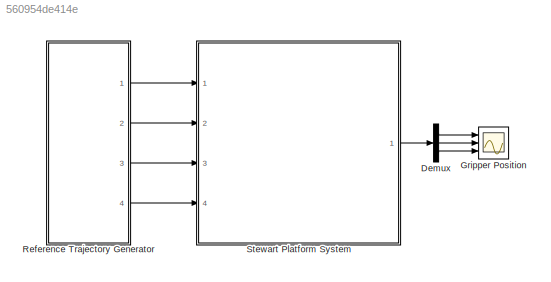
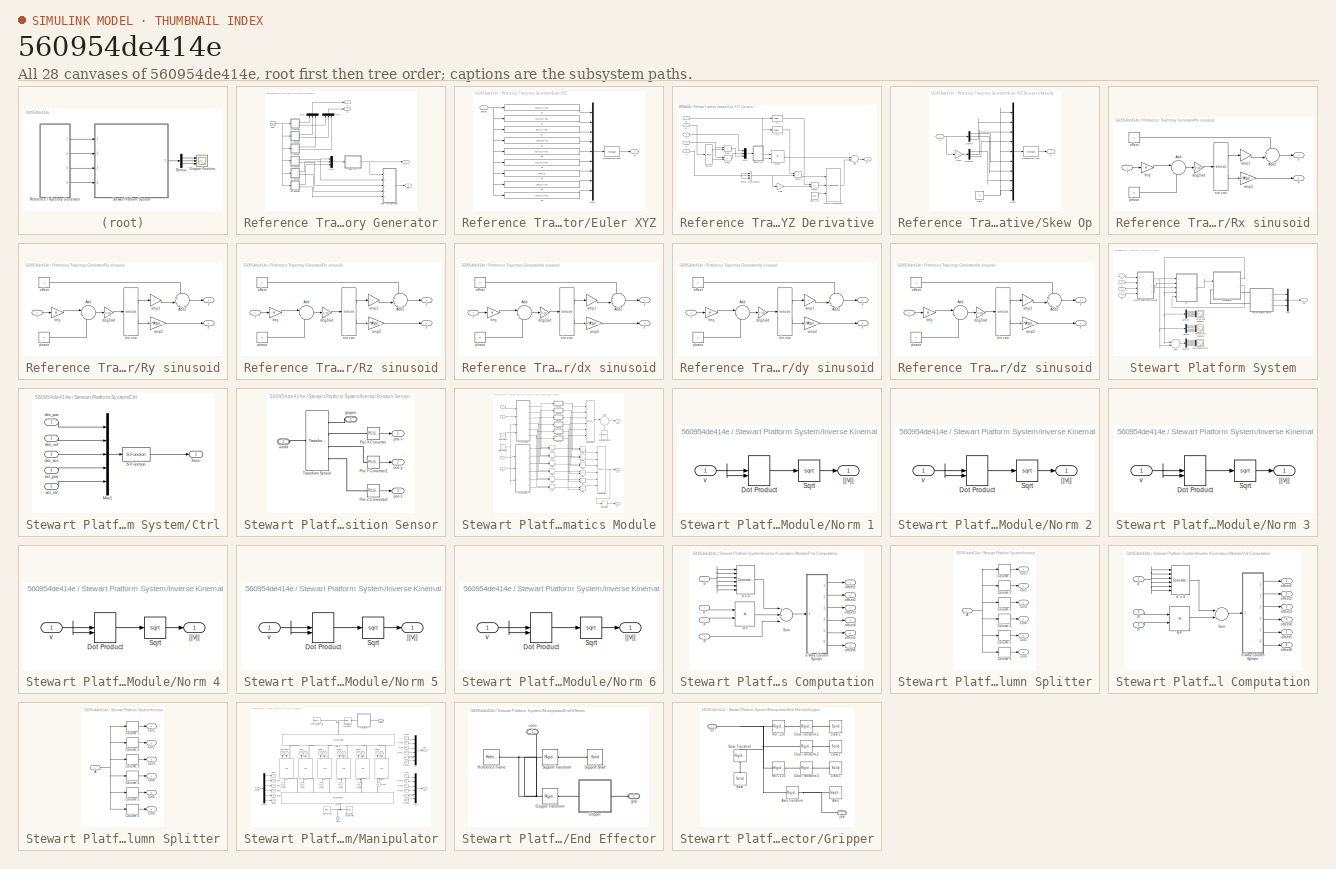
[diagram: thumbnail index - all 28 canvases of the model, root first then tree order]
MODEL slx_560954de414e
KIND model
CONFIG AbsTol = auto
CONFIG EnableMultiTasking = on
CONFIG FixedStep = auto
CONFIG MaxStep = 0.001
CONFIG MinStep = auto
CONFIG RelTol = 1e-3
CONFIG SampleTimeConstraint = Unconstrained
CONFIG Solver = ode45
CONFIG SolverName = ode45
CONFIG StartTime = 0.0
CONFIG StopTime = 40
WORKSPACE source: MAT-file member
WORKSPACE g_density = 5
BLOCK [Demux] Demux
  DisplayOption = bar
  Outputs = 3
  Ports = [1, 3]
BLOCK [Scope] Gripper Position
  Floating = off
  NumInputPorts = 3
  Ports = [3]
  ScopeSpecificationString = Simulink.scopes.TimeScopeBlockCfg('CurrentConfiguration', extmgr.ConfigurationSet(extmgr.Configuration('Core','General UI',true),extmgr.Configuration('Core','Source UI',true),extmgr.Configuration('Sources','WiredSimulink',true,'DataLoggingSaveFormat','StructureWithTime','DataLoggingDecimation','1'),extmgr.Configuration('Visuals','Time Domain',true,'SerializedDisplays',{struct('MinYLimReal','-5.000...<+2903ch>
BLOCK [SubSystem] Reference Trajectory Generator
  Ports = [0, 4]
  RequestExecContextInheritance = off
BLOCK [Clock] Reference Trajectory Generator/Clock
BLOCK [SubSystem] Reference Trajectory Generator/Euler XYZ
  Ports = [1, 1]
  RequestExecContextInheritance = off
BLOCK [SubSystem] Reference Trajectory Generator/Euler XYZ Derivative
  Ports = [5, 1]
  RequestExecContextInheritance = off
BLOCK [Sum] Reference Trajectory Generator/Euler XYZ Derivative/Add
  InputSameDT = off
  OutDataTypeStr = Inherit: Inherit via internal rule
  Ports = [2, 1]
  SaturateOnIntegerOverflow = off
BLOCK [Gain] Reference Trajectory Generator/Euler XYZ Derivative/Gain
  Gain = -1
  OutDataTypeStr = Inherit: Inherit via internal rule
  ParamDataTypeStr = Inherit: Inherit via internal rule
  SaturateOnIntegerOverflow = off
BLOCK [Concatenate] Reference Trajectory Generator/Euler XYZ Derivative/Matrix Concatenate
  ConcatenateDimension = 2
  Mode = Multidimensional array
  NumInputs = 3
  Ports = [3, 1]
BLOCK [Mux] Reference Trajectory Generator/Euler XYZ Derivative/Mux5
  DisplayOption = bar
  Inputs = 3
  Ports = [3, 1]
BLOCK [Product] Reference Trajectory Generator/Euler XYZ Derivative/Prod1
  InputSameDT = off
  OutDataTypeStr = Inherit: Inherit via internal rule
  Ports = [2, 1]
  SaturateOnIntegerOverflow = off
BLOCK [Product] Reference Trajectory Generator/Euler XYZ Derivative/Prod2
  InputSameDT = off
  OutDataTypeStr = Inherit: Inherit via internal rule
  Ports = [2, 1]
  SaturateOnIntegerOverflow = off
BLOCK [Product] Reference Trajectory Generator/Euler XYZ Derivative/Prod3
  InputSameDT = off
  Multiplication = Matrix(*)
  OutDataTypeStr = Inherit: Inherit via internal rule
  Ports = [2, 1]
  SaturateOnIntegerOverflow = off
BLOCK [Product] Reference Trajectory Generator/Euler XYZ Derivative/Prod4
  InputSameDT = off
  OutDataTypeStr = Inherit: Inherit via internal rule
  Ports = [2, 1]
  SaturateOnIntegerOverflow = off
BLOCK [Product] Reference Trajectory Generator/Euler XYZ Derivative/Prod5
  InputSameDT = off
  OutDataTypeStr = Inherit: Inherit via internal rule
  Ports = [2, 1]
  SaturateOnIntegerOverflow = off
BLOCK [Inport] Reference Trajectory Generator/Euler XYZ Derivative/R
  IconDisplay = Port number
BLOCK [Outport] Reference Trajectory Generator/Euler XYZ Derivative/R'
  IconDisplay = Port number
BLOCK [Selector] Reference Trajectory Generator/Euler XYZ Derivative/R1
  IndexOptions = Select all,Index vector (dialog)
  Indices = [1 3],1
  InputPortWidth = 3
  NumberOfDimensions = 2
  OutputSizes = 1,1
  Ports = [1, 1]
BLOCK [Selector] Reference Trajectory Generator/Euler XYZ Derivative/R2
  IndexOptions = Select all,Index vector (dialog)
  Indices = [1 3],2
  InputPortWidth = 3
  NumberOfDimensions = 2
  OutputSizes = 1,1
  Ports = [1, 1]
BLOCK [SubSystem] Reference Trajectory Generator/Euler XYZ Derivative/Skew Op
  Ports = [1, 1]
  RequestExecContextInheritance = off
BLOCK [Demux] Reference Trajectory Generator/Euler XYZ Derivative/Skew Op/Demux
  DisplayOption = bar
  Outputs = 3
  Ports = [1, 3]
BLOCK [Demux] Reference Trajectory Generator/Euler XYZ Derivative/Skew Op/Demux1
  DisplayOption = bar
  Outputs = 3
  Ports = [1, 3]
BLOCK [Gain] Reference Trajectory Generator/Euler XYZ Derivative/Skew Op/Gain
  Gain = -1
  OutDataTypeStr = Inherit: Inherit via internal rule
  ParamDataTypeStr = Inherit: Inherit via internal rule
  SaturateOnIntegerOverflow = off
BLOCK [Mux] Reference Trajectory Generator/Euler XYZ Derivative/Skew Op/Mux6
  DisplayOption = bar
  Inputs = 9
  Ports = [9, 1]
BLOCK [Reshape] Reference Trajectory Generator/Euler XYZ Derivative/Skew Op/Reshape 9x1->3x3
  OutputDimensionality = Customize
  OutputDimensions = [3,3]
  Ports = [1, 1]
BLOCK [Constant] Reference Trajectory Generator/Euler XYZ Derivative/Skew Op/Zero
  Value = 0
BLOCK [Inport] Reference Trajectory Generator/Euler XYZ Derivative/Skew Op/v
  IconDisplay = Port number
BLOCK [Outport] Reference Trajectory Generator/Euler XYZ Derivative/Skew Op/v~
  IconDisplay = Port number
BLOCK [Concatenate] Reference Trajectory Generator/Euler XYZ Derivative/Vector Concatenate
  Mode = Multidimensional array
  NumInputs = 3
  Ports = [3, 1]
BLOCK [Constant] Reference Trajectory Generator/Euler XYZ Derivative/Zero Col
  Value = [0 0 0]'
BLOCK [Inport] Reference Trajectory Generator/Euler XYZ Derivative/a
  IconDisplay = Port number
  Port = 2
BLOCK [Inport] Reference Trajectory Generator/Euler XYZ Derivative/a'
  IconDisplay = Port number
  Port = 3
BLOCK [Inport] Reference Trajectory Generator/Euler XYZ Derivative/b'
  IconDisplay = Port number
  Port = 4
BLOCK [Inport] Reference Trajectory Generator/Euler XYZ Derivative/c'
  IconDisplay = Port number
  Port = 5
BLOCK [Trigonometry] Reference Trajectory Generator/Euler XYZ Derivative/sin cos
  Operator = sincos
  Ports = [1, 2]
BLOCK [Fcn] Reference Trajectory Generator/Euler XYZ/11
  Expr = cos(u[2])*cos(u[3])
BLOCK [Fcn] Reference Trajectory Generator/Euler XYZ/12
  Expr = -cos(u[2])*sin(u[3])
BLOCK [Fcn] Reference Trajectory Generator/Euler XYZ/13
  Expr = sin(u[2])
BLOCK [Fcn] Reference Trajectory Generator/Euler XYZ/21
  Expr = cos(u[3])*sin(u[2])*sin(u[1])+cos(u[1])*sin(u[3])
BLOCK [Fcn] Reference Trajectory Generator/Euler XYZ/22
  Expr = cos(u[1])*cos(u[3]) - sin(u[1])*sin(u[2])*sin(u[3])
BLOCK [Fcn] Reference Trajectory Generator/Euler XYZ/23
  Expr = -sin(u[1])*cos(u[2])
BLOCK [Fcn] Reference Trajectory Generator/Euler XYZ/31
  Expr = sin(u[1])*sin(u[3]) - cos(u[1])*cos(u[3])*sin(u[2])
BLOCK [Fcn] Reference Trajectory Generator/Euler XYZ/32
  Expr = cos(u[3])*sin(u[1])+cos(u[1])*sin(u[2])*sin(u[3])
BLOCK [Fcn] Reference Trajectory Generator/Euler XYZ/33
  Expr = cos(u[1])*cos(u[2])
BLOCK [Mux] Reference Trajectory Generator/Euler XYZ/Mux2
  DisplayOption = bar
  Inputs = 9
  Ports = [9, 1]
BLOCK [Outport] Reference Trajectory Generator/Euler XYZ/R
  IconDisplay = Port number
BLOCK [Reshape] Reference Trajectory Generator/Euler XYZ/Reshape 9x1->3x3
  OutputDimensionality = Customize
  OutputDimensions = [3,3]
  Ports = [1, 1]
BLOCK [Inport] Reference Trajectory Generator/Euler XYZ/angles
  IconDisplay = Port number
BLOCK [Mux] Reference Trajectory Generator/Mux1
  DisplayOption = bar
  Inputs = 3
  Ports = [3, 1]
BLOCK [Mux] Reference Trajectory Generator/Mux3
  DisplayOption = bar
  Inputs = 3
  Ports = [3, 1]
BLOCK [Mux] Reference Trajectory Generator/Mux4
  DisplayOption = bar
  Inputs = 3
  Ports = [3, 1]
BLOCK [Outport] Reference Trajectory Generator/R
  IconDisplay = Port number
  Port = 2
BLOCK [Outport] Reference Trajectory Generator/R'
  IconDisplay = Port number
  Port = 4
BLOCK [SubSystem] Reference Trajectory Generator/Rx sinusoid
  Ports = [1, 2]
  RequestExecContextInheritance = off
BLOCK [Sum] Reference Trajectory Generator/Rx sinusoid/Add
  IconShape = round
  InputSameDT = off
  Inputs = |++
  OutDataTypeStr = Inherit: Inherit via internal rule
  Ports = [2, 1]
  SaturateOnIntegerOverflow = off
BLOCK [Sum] Reference Trajectory Generator/Rx sinusoid/Add2
  IconShape = round
  InputSameDT = off
  Inputs = ++|
  OutDataTypeStr = Inherit: Inherit via internal rule
  Ports = [2, 1]
  SaturateOnIntegerOverflow = off
BLOCK [Gain] Reference Trajectory Generator/Rx sinusoid/amp1
  Gain = A
  OutDataTypeStr = Inherit: Inherit via internal rule
  ParamDataTypeStr = Inherit: Inherit via internal rule
  SaturateOnIntegerOverflow = off
BLOCK [Gain] Reference Trajectory Generator/Rx sinusoid/amp2
  Gain = w*A*pi/180
  OutDataTypeStr = Inherit: Inherit via internal rule
  ParamDataTypeStr = Inherit: Inherit via internal rule
  SaturateOnIntegerOverflow = off
BLOCK [Gain] Reference Trajectory Generator/Rx sinusoid/deg2rad
  Gain = pi/180
  OutDataTypeStr = Inherit: Inherit via internal rule
  ParamDataTypeStr = Inherit: Inherit via internal rule
  SaturateOnIntegerOverflow = off
BLOCK [Outport] Reference Trajectory Generator/Rx sinusoid/f
  IconDisplay = Port number
BLOCK [Outport] Reference Trajectory Generator/Rx sinusoid/f'
  IconDisplay = Port number
  Port = 2
BLOCK [Gain] Reference Trajectory Generator/Rx sinusoid/freq
  Gain = w
  OutDataTypeStr = Inherit: Inherit via internal rule
  ParamDataTypeStr = Inherit: Inherit via internal rule
  SaturateOnIntegerOverflow = off
BLOCK [Constant] Reference Trajectory Generator/Rx sinusoid/offset
  Value = k
  VectorParams1D = off
BLOCK [Constant] Reference Trajectory Generator/Rx sinusoid/phase
  Value = p
  VectorParams1D = off
BLOCK [Trigonometry] Reference Trajectory Generator/Rx sinusoid/sin cos
  Operator = sincos
  Ports = [1, 2]
BLOCK [Inport] Reference Trajectory Generator/Rx sinusoid/t
  IconDisplay = Port number
BLOCK [SubSystem] Reference Trajectory Generator/Ry sinusoid
  Ports = [1, 2]
  RequestExecContextInheritance = off
BLOCK [Sum] Reference Trajectory Generator/Ry sinusoid/Add
  IconShape = round
  InputSameDT = off
  Inputs = |++
  OutDataTypeStr = Inherit: Inherit via internal rule
  Ports = [2, 1]
  SaturateOnIntegerOverflow = off
BLOCK [Sum] Reference Trajectory Generator/Ry sinusoid/Add2
  IconShape = round
  InputSameDT = off
  Inputs = ++|
  OutDataTypeStr = Inherit: Inherit via internal rule
  Ports = [2, 1]
  SaturateOnIntegerOverflow = off
BLOCK [Gain] Reference Trajectory Generator/Ry sinusoid/amp1
  Gain = A
  OutDataTypeStr = Inherit: Inherit via internal rule
  ParamDataTypeStr = Inherit: Inherit via internal rule
  SaturateOnIntegerOverflow = off
BLOCK [Gain] Reference Trajectory Generator/Ry sinusoid/amp2
  Gain = w*A*pi/180
  OutDataTypeStr = Inherit: Inherit via internal rule
  ParamDataTypeStr = Inherit: Inherit via internal rule
  SaturateOnIntegerOverflow = off
BLOCK [Gain] Reference Trajectory Generator/Ry sinusoid/deg2rad
  Gain = pi/180
  OutDataTypeStr = Inherit: Inherit via internal rule
  ParamDataTypeStr = Inherit: Inherit via internal rule
  SaturateOnIntegerOverflow = off
BLOCK [Outport] Reference Trajectory Generator/Ry sinusoid/f
  IconDisplay = Port number
BLOCK [Outport] Reference Trajectory Generator/Ry sinusoid/f'
  IconDisplay = Port number
  Port = 2
BLOCK [Gain] Reference Trajectory Generator/Ry sinusoid/freq
  Gain = w
  OutDataTypeStr = Inherit: Inherit via internal rule
  ParamDataTypeStr = Inherit: Inherit via internal rule
  SaturateOnIntegerOverflow = off
BLOCK [Constant] Reference Trajectory Generator/Ry sinusoid/offset
  Value = k
  VectorParams1D = off
BLOCK [Constant] Reference Trajectory Generator/Ry sinusoid/phase
  Value = p
  VectorParams1D = off
BLOCK [Trigonometry] Reference Trajectory Generator/Ry sinusoid/sin cos
  Operator = sincos
  Ports = [1, 2]
BLOCK [Inport] Reference Trajectory Generator/Ry sinusoid/t
  IconDisplay = Port number
BLOCK [SubSystem] Reference Trajectory Generator/Rz sinusoid
  Ports = [1, 2]
  RequestExecContextInheritance = off
BLOCK [Sum] Reference Trajectory Generator/Rz sinusoid/Add
  IconShape = round
  InputSameDT = off
  Inputs = |++
  OutDataTypeStr = Inherit: Inherit via internal rule
  Ports = [2, 1]
  SaturateOnIntegerOverflow = off
BLOCK [Sum] Reference Trajectory Generator/Rz sinusoid/Add2
  IconShape = round
  InputSameDT = off
  Inputs = ++|
  OutDataTypeStr = Inherit: Inherit via internal rule
  Ports = [2, 1]
  SaturateOnIntegerOverflow = off
BLOCK [Gain] Reference Trajectory Generator/Rz sinusoid/amp1
  Gain = A
  OutDataTypeStr = Inherit: Inherit via internal rule
  ParamDataTypeStr = Inherit: Inherit via internal rule
  SaturateOnIntegerOverflow = off
BLOCK [Gain] Reference Trajectory Generator/Rz sinusoid/amp2
  Gain = w*A*pi/180
  OutDataTypeStr = Inherit: Inherit via internal rule
  ParamDataTypeStr = Inherit: Inherit via internal rule
  SaturateOnIntegerOverflow = off
BLOCK [Gain] Reference Trajectory Generator/Rz sinusoid/deg2rad
  Gain = pi/180
  OutDataTypeStr = Inherit: Inherit via internal rule
  ParamDataTypeStr = Inherit: Inherit via internal rule
  SaturateOnIntegerOverflow = off
BLOCK [Outport] Reference Trajectory Generator/Rz sinusoid/f
  IconDisplay = Port number
BLOCK [Outport] Reference Trajectory Generator/Rz sinusoid/f'
  IconDisplay = Port number
  Port = 2
BLOCK [Gain] Reference Trajectory Generator/Rz sinusoid/freq
  Gain = w
  OutDataTypeStr = Inherit: Inherit via internal rule
  ParamDataTypeStr = Inherit: Inherit via internal rule
  SaturateOnIntegerOverflow = off
BLOCK [Constant] Reference Trajectory Generator/Rz sinusoid/offset
  Value = k
  VectorParams1D = off
BLOCK [Constant] Reference Trajectory Generator/Rz sinusoid/phase
  Value = p
  VectorParams1D = off
BLOCK [Trigonometry] Reference Trajectory Generator/Rz sinusoid/sin cos
  Operator = sincos
  Ports = [1, 2]
BLOCK [Inport] Reference Trajectory Generator/Rz sinusoid/t
  IconDisplay = Port number
BLOCK [Outport] Reference Trajectory Generator/d
  IconDisplay = Port number
BLOCK [Outport] Reference Trajectory Generator/d'
  IconDisplay = Port number
  Port = 3
BLOCK [SubSystem] Reference Trajectory Generator/dx sinusoid
  Ports = [1, 2]
  RequestExecContextInheritance = off
BLOCK [Sum] Reference Trajectory Generator/dx sinusoid/Add
  IconShape = round
  InputSameDT = off
  Inputs = |++
  OutDataTypeStr = Inherit: Inherit via internal rule
  Ports = [2, 1]
  SaturateOnIntegerOverflow = off
BLOCK [Sum] Reference Trajectory Generator/dx sinusoid/Add2
  IconShape = round
  InputSameDT = off
  Inputs = ++|
  OutDataTypeStr = Inherit: Inherit via internal rule
  Ports = [2, 1]
  SaturateOnIntegerOverflow = off
BLOCK [Gain] Reference Trajectory Generator/dx sinusoid/amp1
  Gain = A
  OutDataTypeStr = Inherit: Inherit via internal rule
  ParamDataTypeStr = Inherit: Inherit via internal rule
  SaturateOnIntegerOverflow = off
BLOCK [Gain] Reference Trajectory Generator/dx sinusoid/amp2
  Gain = w*A*pi/180
  OutDataTypeStr = Inherit: Inherit via internal rule
  ParamDataTypeStr = Inherit: Inherit via internal rule
  SaturateOnIntegerOverflow = off
BLOCK [Gain] Reference Trajectory Generator/dx sinusoid/deg2rad
  Gain = pi/180
  OutDataTypeStr = Inherit: Inherit via internal rule
  ParamDataTypeStr = Inherit: Inherit via internal rule
  SaturateOnIntegerOverflow = off
BLOCK [Outport] Reference Trajectory Generator/dx sinusoid/f
  IconDisplay = Port number
BLOCK [Outport] Reference Trajectory Generator/dx sinusoid/f'
  IconDisplay = Port number
  Port = 2
BLOCK [Gain] Reference Trajectory Generator/dx sinusoid/freq
  Gain = w
  OutDataTypeStr = Inherit: Inherit via internal rule
  ParamDataTypeStr = Inherit: Inherit via internal rule
  SaturateOnIntegerOverflow = off
BLOCK [Constant] Reference Trajectory Generator/dx sinusoid/offset
  Value = k
  VectorParams1D = off
BLOCK [Constant] Reference Trajectory Generator/dx sinusoid/phase
  Value = p
  VectorParams1D = off
BLOCK [Trigonometry] Reference Trajectory Generator/dx sinusoid/sin cos
  Operator = sincos
  Ports = [1, 2]
BLOCK [Inport] Reference Trajectory Generator/dx sinusoid/t
  IconDisplay = Port number
BLOCK [SubSystem] Reference Trajectory Generator/dy sinusoid
  Ports = [1, 2]
  RequestExecContextInheritance = off
BLOCK [Sum] Reference Trajectory Generator/dy sinusoid/Add
  IconShape = round
  InputSameDT = off
  Inputs = |++
  OutDataTypeStr = Inherit: Inherit via internal rule
  Ports = [2, 1]
  SaturateOnIntegerOverflow = off
BLOCK [Sum] Reference Trajectory Generator/dy sinusoid/Add2
  IconShape = round
  InputSameDT = off
  Inputs = ++|
  OutDataTypeStr = Inherit: Inherit via internal rule
  Ports = [2, 1]
  SaturateOnIntegerOverflow = off
BLOCK [Gain] Reference Trajectory Generator/dy sinusoid/amp1
  Gain = A
  OutDataTypeStr = Inherit: Inherit via internal rule
  ParamDataTypeStr = Inherit: Inherit via internal rule
  SaturateOnIntegerOverflow = off
BLOCK [Gain] Reference Trajectory Generator/dy sinusoid/amp2
  Gain = w*A*pi/180
  OutDataTypeStr = Inherit: Inherit via internal rule
  ParamDataTypeStr = Inherit: Inherit via internal rule
  SaturateOnIntegerOverflow = off
BLOCK [Gain] Reference Trajectory Generator/dy sinusoid/deg2rad
  Gain = pi/180
  OutDataTypeStr = Inherit: Inherit via internal rule
  ParamDataTypeStr = Inherit: Inherit via internal rule
  SaturateOnIntegerOverflow = off
BLOCK [Outport] Reference Trajectory Generator/dy sinusoid/f
  IconDisplay = Port number
BLOCK [Outport] Reference Trajectory Generator/dy sinusoid/f'
  IconDisplay = Port number
  Port = 2
BLOCK [Gain] Reference Trajectory Generator/dy sinusoid/freq
  Gain = w
  OutDataTypeStr = Inherit: Inherit via internal rule
  ParamDataTypeStr = Inherit: Inherit via internal rule
  SaturateOnIntegerOverflow = off
BLOCK [Constant] Reference Trajectory Generator/dy sinusoid/offset
  Value = k
  VectorParams1D = off
BLOCK [Constant] Reference Trajectory Generator/dy sinusoid/phase
  Value = p
  VectorParams1D = off
BLOCK [Trigonometry] Reference Trajectory Generator/dy sinusoid/sin cos
  Operator = sincos
  Ports = [1, 2]
BLOCK [Inport] Reference Trajectory Generator/dy sinusoid/t
  IconDisplay = Port number
BLOCK [SubSystem] Reference Trajectory Generator/dz sinusoid
  Ports = [1, 2]
  RequestExecContextInheritance = off
BLOCK [Sum] Reference Trajectory Generator/dz sinusoid/Add
  IconShape = round
  InputSameDT = off
  Inputs = |++
  OutDataTypeStr = Inherit: Inherit via internal rule
  Ports = [2, 1]
  SaturateOnIntegerOverflow = off
BLOCK [Sum] Reference Trajectory Generator/dz sinusoid/Add2
  IconShape = round
  InputSameDT = off
  Inputs = ++|
  OutDataTypeStr = Inherit: Inherit via internal rule
  Ports = [2, 1]
  SaturateOnIntegerOverflow = off
BLOCK [Gain] Reference Trajectory Generator/dz sinusoid/amp1
  Gain = A
  OutDataTypeStr = Inherit: Inherit via internal rule
  ParamDataTypeStr = Inherit: Inherit via internal rule
  SaturateOnIntegerOverflow = off
BLOCK [Gain] Reference Trajectory Generator/dz sinusoid/amp2
  Gain = w*A*pi/180
  OutDataTypeStr = Inherit: Inherit via internal rule
  ParamDataTypeStr = Inherit: Inherit via internal rule
  SaturateOnIntegerOverflow = off
BLOCK [Gain] Reference Trajectory Generator/dz sinusoid/deg2rad
  Gain = pi/180
  OutDataTypeStr = Inherit: Inherit via internal rule
  ParamDataTypeStr = Inherit: Inherit via internal rule
  SaturateOnIntegerOverflow = off
BLOCK [Outport] Reference Trajectory Generator/dz sinusoid/f
  IconDisplay = Port number
BLOCK [Outport] Reference Trajectory Generator/dz sinusoid/f'
  IconDisplay = Port number
  Port = 2
BLOCK [Gain] Reference Trajectory Generator/dz sinusoid/freq
  Gain = w
  OutDataTypeStr = Inherit: Inherit via internal rule
  ParamDataTypeStr = Inherit: Inherit via internal rule
  SaturateOnIntegerOverflow = off
BLOCK [Constant] Reference Trajectory Generator/dz sinusoid/offset
  Value = k
  VectorParams1D = off
BLOCK [Constant] Reference Trajectory Generator/dz sinusoid/phase
  Value = p
  VectorParams1D = off
BLOCK [Trigonometry] Reference Trajectory Generator/dz sinusoid/sin cos
  Operator = sincos
  Ports = [1, 2]
BLOCK [Inport] Reference Trajectory Generator/dz sinusoid/t
  IconDisplay = Port number
BLOCK [SubSystem] Stewart Platform System
  Ports = [4, 1]
  RequestExecContextInheritance = off
BLOCK [Scope] Stewart Platform System/Actual Leg Positions
  Floating = off
  NumInputPorts = 6
  Ports = [6]
  ScopeSpecificationString = Simulink.scopes.TimeScopeBlockCfg('CurrentConfiguration', extmgr.ConfigurationSet(extmgr.Configuration('Core','General UI',true),extmgr.Configuration('Core','Source UI',true),extmgr.Configuration('Sources','WiredSimulink',true,'DataLoggingVariableName','ScopeData5','DataLoggingSaveFormat','StructureWithTime','DataLoggingDecimation','1'),extmgr.Configuration('Visuals','Time Domain',true,'Serialized...<+5145ch>
BLOCK [SubSystem] Stewart Platform System/Ctrl
  Ports = [5, 1]
  RequestExecContextInheritance = off
BLOCK [Mux] Stewart Platform System/Ctrl/Mux1
  DisplayOption = bar
  Inputs = 5
  Ports = [5, 1]
BLOCK [S-Function] Stewart Platform System/Ctrl/S-Function
  EnableBusSupport = off
  FunctionName = ctrl
  Ports = [1, 1]
  SFcnIsStateOwnerBlock = off
  SFunctionDeploymentMode = off
BLOCK [Inport] Stewart Platform System/Ctrl/act_pos
  IconDisplay = Port number
  Port = 4
BLOCK [Inport] Stewart Platform System/Ctrl/act_vel
  IconDisplay = Port number
  Port = 5
BLOCK [Inport] Stewart Platform System/Ctrl/des_acc
  IconDisplay = Port number
  Port = 3
BLOCK [Inport] Stewart Platform System/Ctrl/des_pos
  IconDisplay = Port number
BLOCK [Inport] Stewart Platform System/Ctrl/des_vel
  IconDisplay = Port number
  Port = 2
BLOCK [Outport] Stewart Platform System/Ctrl/force
  IconDisplay = Port number
BLOCK [Demux] Stewart Platform System/Demux
  DisplayOption = bar
  Outputs = 6
  Ports = [1, 6]
BLOCK [Demux] Stewart Platform System/Demux1
  DisplayOption = bar
  Outputs = 6
  Ports = [1, 6]
BLOCK [Demux] Stewart Platform System/Demux2
  DisplayOption = bar
  Outputs = 6
  Ports = [1, 6]
BLOCK [Scope] Stewart Platform System/Desired Leg Positions
  Floating = off
  NumInputPorts = 6
  Ports = [6]
  ScopeSpecificationString = Simulink.scopes.TimeScopeBlockCfg('CurrentConfiguration', extmgr.ConfigurationSet(extmgr.Configuration('Core','General UI',true),extmgr.Configuration('Core','Source UI',true),extmgr.Configuration('Sources','WiredSimulink',true,'DataLoggingVariableName','ScopeData4','DataLoggingSaveFormat','StructureWithTime','DataLoggingDecimation','1'),extmgr.Configuration('Visuals','Time Domain',true,'Serialized...<+5098ch>
BLOCK [SubSystem] Stewart Platform System/Inertial Position Sensor
  Ports = [0, 3, 0, 0, 0, 2]
  RequestExecContextInheritance = off
BLOCK [Reference] Stewart Platform System/Inertial Position Sensor/Pos X Converter  REF=nesl_utility/PS-Simulink
Converter
  Ports = [0, 1, 0, 0, 0, 1]
  SourceBlock = nesl_utility/PS-Simulink\nConverter
  SourceProductBaseCode = SS
  SourceProductName = Simscape
  SourceType = PS-Simulink\nConverter
BLOCK [Reference] Stewart Platform System/Inertial Position Sensor/Pos Y Converter1  REF=nesl_utility/PS-Simulink
Converter
  Ports = [0, 1, 0, 0, 0, 1]
  SourceBlock = nesl_utility/PS-Simulink\nConverter
  SourceProductBaseCode = SS
  SourceProductName = Simscape
  SourceType = PS-Simulink\nConverter
BLOCK [Reference] Stewart Platform System/Inertial Position Sensor/Pos Z Converter2  REF=nesl_utility/PS-Simulink
Converter
  Ports = [0, 1, 0, 0, 0, 1]
  SourceBlock = nesl_utility/PS-Simulink\nConverter
  SourceProductBaseCode = SS
  SourceProductName = Simscape
  SourceType = PS-Simulink\nConverter
BLOCK [Reference] Stewart Platform System/Inertial Position Sensor/Transform Sensor  REF=sm_lib/Frames and
Transforms/Transform
Sensor
  Ports = [0, 0, 0, 0, 0, 1, 4]
  SourceBlock = sm_lib/Frames and\nTransforms/Transform\nSensor
  SourceProductBaseCode = MS
  SourceProductName = Simscape Multibody
  SourceType = Transform\nSensor
BLOCK [PMIOPort] Stewart Platform System/Inertial Position Sensor/gripper
  Side = Left
BLOCK [Outport] Stewart Platform System/Inertial Position Sensor/pos x
  IconDisplay = Port number
BLOCK [Outport] Stewart Platform System/Inertial Position Sensor/pos y
  IconDisplay = Port number
  Port = 2
BLOCK [Outport] Stewart Platform System/Inertial Position Sensor/pos z
  IconDisplay = Port number
  Port = 3
BLOCK [PMIOPort] Stewart Platform System/Inertial Position Sensor/world
  Port = 2
  Side = Left
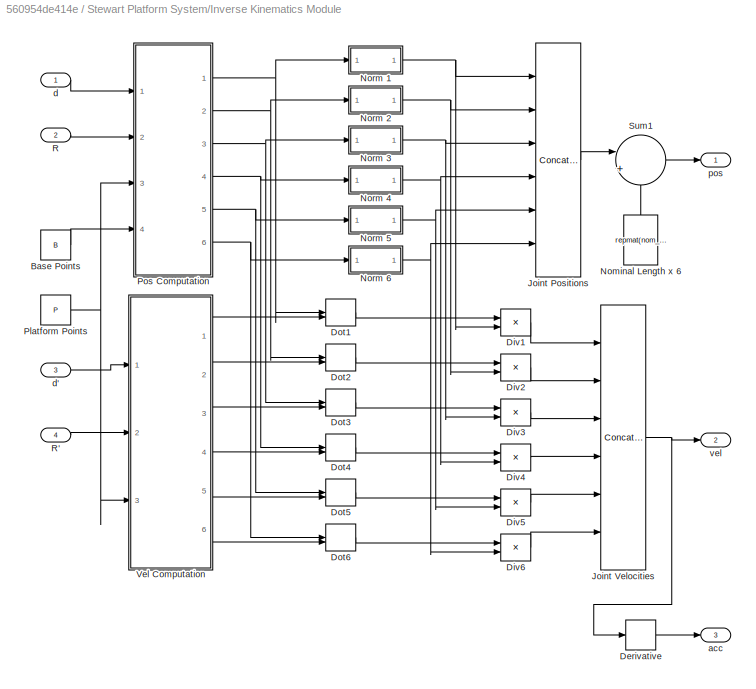
BLOCK [SubSystem] Stewart Platform System/Inverse Kinematics Module
  Ports = [4, 3]
  RequestExecContextInheritance = off
BLOCK [Constant] Stewart Platform System/Inverse Kinematics Module/Base Points
  Value = B
BLOCK [Derivative] Stewart Platform System/Inverse Kinematics Module/Derivative
BLOCK [Product] Stewart Platform System/Inverse Kinematics Module/Div1
  InputSameDT = off
  Inputs = */
  OutDataTypeStr = Inherit: Inherit via internal rule
  Ports = [2, 1]
  RndMeth = Floor
  SaturateOnIntegerOverflow = off
BLOCK [Product] Stewart Platform System/Inverse Kinematics Module/Div2
  InputSameDT = off
  Inputs = */
  OutDataTypeStr = Inherit: Inherit via internal rule
  Ports = [2, 1]
  RndMeth = Floor
  SaturateOnIntegerOverflow = off
BLOCK [Product] Stewart Platform System/Inverse Kinematics Module/Div3
  InputSameDT = off
  Inputs = */
  OutDataTypeStr = Inherit: Inherit via internal rule
  Ports = [2, 1]
  RndMeth = Floor
  SaturateOnIntegerOverflow = off
BLOCK [Product] Stewart Platform System/Inverse Kinematics Module/Div4
  InputSameDT = off
  Inputs = */
  OutDataTypeStr = Inherit: Inherit via internal rule
  Ports = [2, 1]
  RndMeth = Floor
  SaturateOnIntegerOverflow = off
BLOCK [Product] Stewart Platform System/Inverse Kinematics Module/Div5
  InputSameDT = off
  Inputs = */
  OutDataTypeStr = Inherit: Inherit via internal rule
  Ports = [2, 1]
  RndMeth = Floor
  SaturateOnIntegerOverflow = off
BLOCK [Product] Stewart Platform System/Inverse Kinematics Module/Div6
  InputSameDT = off
  Inputs = */
  OutDataTypeStr = Inherit: Inherit via internal rule
  Ports = [2, 1]
  RndMeth = Floor
  SaturateOnIntegerOverflow = off
BLOCK [DotProduct] Stewart Platform System/Inverse Kinematics Module/Dot1
  InputSameDT = off
  OutDataTypeStr = Inherit: Inherit via internal rule
BLOCK [DotProduct] Stewart Platform System/Inverse Kinematics Module/Dot2
  InputSameDT = off
  OutDataTypeStr = Inherit: Inherit via internal rule
BLOCK [DotProduct] Stewart Platform System/Inverse Kinematics Module/Dot3
  InputSameDT = off
  OutDataTypeStr = Inherit: Inherit via internal rule
BLOCK [DotProduct] Stewart Platform System/Inverse Kinematics Module/Dot4
  InputSameDT = off
  OutDataTypeStr = Inherit: Inherit via internal rule
BLOCK [DotProduct] Stewart Platform System/Inverse Kinematics Module/Dot5
  InputSameDT = off
  OutDataTypeStr = Inherit: Inherit via internal rule
BLOCK [DotProduct] Stewart Platform System/Inverse Kinematics Module/Dot6
  InputSameDT = off
  OutDataTypeStr = Inherit: Inherit via internal rule
BLOCK [Concatenate] Stewart Platform System/Inverse Kinematics Module/Joint Positions
  Mode = Multidimensional array
  NumInputs = 6
  Ports = [6, 1]
BLOCK [Concatenate] Stewart Platform System/Inverse Kinematics Module/Joint Velocities
  Mode = Multidimensional array
  NumInputs = 6
  Ports = [6, 1]
BLOCK [Constant] Stewart Platform System/Inverse Kinematics Module/Nominal Length x 6
  Value = repmat(nom_length, 6, 1)
BLOCK [SubSystem] Stewart Platform System/Inverse Kinematics Module/Norm 1
  Ports = [1, 1]
  RequestExecContextInheritance = off
BLOCK [DotProduct] Stewart Platform System/Inverse Kinematics Module/Norm 1/Dot Product
  InputSameDT = off
  OutDataTypeStr = Inherit: Inherit via internal rule
BLOCK [Sqrt] Stewart Platform System/Inverse Kinematics Module/Norm 1/Sqrt
BLOCK [Inport] Stewart Platform System/Inverse Kinematics Module/Norm 1/v
  IconDisplay = Port number
BLOCK [Outport] Stewart Platform System/Inverse Kinematics Module/Norm 1/||v||
  IconDisplay = Port number
BLOCK [SubSystem] Stewart Platform System/Inverse Kinematics Module/Norm 2
  Ports = [1, 1]
  RequestExecContextInheritance = off
BLOCK [DotProduct] Stewart Platform System/Inverse Kinematics Module/Norm 2/Dot Product
  InputSameDT = off
  OutDataTypeStr = Inherit: Inherit via internal rule
BLOCK [Sqrt] Stewart Platform System/Inverse Kinematics Module/Norm 2/Sqrt
BLOCK [Inport] Stewart Platform System/Inverse Kinematics Module/Norm 2/v
  IconDisplay = Port number
BLOCK [Outport] Stewart Platform System/Inverse Kinematics Module/Norm 2/||v||
  IconDisplay = Port number
BLOCK [SubSystem] Stewart Platform System/Inverse Kinematics Module/Norm 3
  Ports = [1, 1]
  RequestExecContextInheritance = off
BLOCK [DotProduct] Stewart Platform System/Inverse Kinematics Module/Norm 3/Dot Product
  InputSameDT = off
  OutDataTypeStr = Inherit: Inherit via internal rule
BLOCK [Sqrt] Stewart Platform System/Inverse Kinematics Module/Norm 3/Sqrt
BLOCK [Inport] Stewart Platform System/Inverse Kinematics Module/Norm 3/v
  IconDisplay = Port number
BLOCK [Outport] Stewart Platform System/Inverse Kinematics Module/Norm 3/||v||
  IconDisplay = Port number
BLOCK [SubSystem] Stewart Platform System/Inverse Kinematics Module/Norm 4
  Ports = [1, 1]
  RequestExecContextInheritance = off
BLOCK [DotProduct] Stewart Platform System/Inverse Kinematics Module/Norm 4/Dot Product
  InputSameDT = off
  OutDataTypeStr = Inherit: Inherit via internal rule
BLOCK [Sqrt] Stewart Platform System/Inverse Kinematics Module/Norm 4/Sqrt
BLOCK [Inport] Stewart Platform System/Inverse Kinematics Module/Norm 4/v
  IconDisplay = Port number
BLOCK [Outport] Stewart Platform System/Inverse Kinematics Module/Norm 4/||v||
  IconDisplay = Port number
BLOCK [SubSystem] Stewart Platform System/Inverse Kinematics Module/Norm 5
  Ports = [1, 1]
  RequestExecContextInheritance = off
BLOCK [DotProduct] Stewart Platform System/Inverse Kinematics Module/Norm 5/Dot Product
  InputSameDT = off
  OutDataTypeStr = Inherit: Inherit via internal rule
BLOCK [Sqrt] Stewart Platform System/Inverse Kinematics Module/Norm 5/Sqrt
BLOCK [Inport] Stewart Platform System/Inverse Kinematics Module/Norm 5/v
  IconDisplay = Port number
BLOCK [Outport] Stewart Platform System/Inverse Kinematics Module/Norm 5/||v||
  IconDisplay = Port number
BLOCK [SubSystem] Stewart Platform System/Inverse Kinematics Module/Norm 6
  Ports = [1, 1]
  RequestExecContextInheritance = off
BLOCK [DotProduct] Stewart Platform System/Inverse Kinematics Module/Norm 6/Dot Product
  InputSameDT = off
  OutDataTypeStr = Inherit: Inherit via internal rule
BLOCK [Sqrt] Stewart Platform System/Inverse Kinematics Module/Norm 6/Sqrt
BLOCK [Inport] Stewart Platform System/Inverse Kinematics Module/Norm 6/v
  IconDisplay = Port number
BLOCK [Outport] Stewart Platform System/Inverse Kinematics Module/Norm 6/||v||
  IconDisplay = Port number
BLOCK [Constant] Stewart Platform System/Inverse Kinematics Module/Platform Points
  Value = P
BLOCK [SubSystem] Stewart Platform System/Inverse Kinematics Module/Pos Computation
  Ports = [4, 6]
  RequestExecContextInheritance = off
BLOCK [SubSystem] Stewart Platform System/Inverse Kinematics Module/Pos Computation/6-Way Column Splitter
  Ports = [1, 6]
  RequestExecContextInheritance = off
BLOCK [Inport] Stewart Platform System/Inverse Kinematics Module/Pos Computation/6-Way Column Splitter/A
  IconDisplay = Port number
BLOCK [Outport] Stewart Platform System/Inverse Kinematics Module/Pos Computation/6-Way Column Splitter/Col1
  IconDisplay = Port number
BLOCK [Outport] Stewart Platform System/Inverse Kinematics Module/Pos Computation/6-Way Column Splitter/Col2
  IconDisplay = Port number
  Port = 2
BLOCK [Outport] Stewart Platform System/Inverse Kinematics Module/Pos Computation/6-Way Column Splitter/Col3
  IconDisplay = Port number
  Port = 3
BLOCK [Outport] Stewart Platform System/Inverse Kinematics Module/Pos Computation/6-Way Column Splitter/Col4
  IconDisplay = Port number
  Port = 4
BLOCK [Outport] Stewart Platform System/Inverse Kinematics Module/Pos Computation/6-Way Column Splitter/Col5
  IconDisplay = Port number
  Port = 5
BLOCK [Outport] Stewart Platform System/Inverse Kinematics Module/Pos Computation/6-Way Column Splitter/Col6
  IconDisplay = Port number
  Port = 6
BLOCK [Selector] Stewart Platform System/Inverse Kinematics Module/Pos Computation/6-Way Column Splitter/Column 1
  IndexOptions = Select all,Index vector (dialog)
  Indices = -1,1
  InputPortWidth = 3
  NumberOfDimensions = 2
  OutputSizes = 1
  Ports = [1, 1]
BLOCK [Selector] Stewart Platform System/Inverse Kinematics Module/Pos Computation/6-Way Column Splitter/Column 2
  IndexOptions = Select all,Index vector (dialog)
  Indices = -1,2
  InputPortWidth = 3
  NumberOfDimensions = 2
  OutputSizes = 1
  Ports = [1, 1]
BLOCK [Selector] Stewart Platform System/Inverse Kinematics Module/Pos Computation/6-Way Column Splitter/Column 3
  IndexOptions = Select all,Index vector (dialog)
  Indices = -1,3
  InputPortWidth = 3
  NumberOfDimensions = 2
  OutputSizes = 1
  Ports = [1, 1]
BLOCK [Selector] Stewart Platform System/Inverse Kinematics Module/Pos Computation/6-Way Column Splitter/Column 4
  IndexOptions = Select all,Index vector (dialog)
  Indices = -1,4
  InputPortWidth = 3
  NumberOfDimensions = 2
  OutputSizes = 1
  Ports = [1, 1]
BLOCK [Selector] Stewart Platform System/Inverse Kinematics Module/Pos Computation/6-Way Column Splitter/Column 5
  IndexOptions = Select all,Index vector (dialog)
  Indices = -1,5
  InputPortWidth = 3
  NumberOfDimensions = 2
  OutputSizes = 1
  Ports = [1, 1]
BLOCK [Selector] Stewart Platform System/Inverse Kinematics Module/Pos Computation/6-Way Column Splitter/Column 6
  IndexOptions = Select all,Index vector (dialog)
  Indices = -1,6
  InputPortWidth = 3
  NumberOfDimensions = 2
  OutputSizes = 1
  Ports = [1, 1]
BLOCK [Inport] Stewart Platform System/Inverse Kinematics Module/Pos Computation/B
  IconDisplay = Port number
  Port = 4
BLOCK [Inport] Stewart Platform System/Inverse Kinematics Module/Pos Computation/P
  IconDisplay = Port number
  Port = 3
BLOCK [Inport] Stewart Platform System/Inverse Kinematics Module/Pos Computation/R
  IconDisplay = Port number
  Port = 2
BLOCK [Product] Stewart Platform System/Inverse Kinematics Module/Pos Computation/R P
  InputSameDT = off
  Multiplication = Matrix(*)
  OutDataTypeStr = Inherit: Inherit via internal rule
  Ports = [2, 1]
  SaturateOnIntegerOverflow = off
BLOCK [Sum] Stewart Platform System/Inverse Kinematics Module/Pos Computation/Sum
  InputSameDT = off
  Inputs = ++-
  OutDataTypeStr = Inherit: Inherit via internal rule
  Ports = [3, 1]
  SaturateOnIntegerOverflow = off
BLOCK [Inport] Stewart Platform System/Inverse Kinematics Module/Pos Computation/d
  IconDisplay = Port number
BLOCK [Concatenate] Stewart Platform System/Inverse Kinematics Module/Pos Computation/d x 6
  ConcatenateDimension = 2
  Mode = Multidimensional array
  NumInputs = 6
  Ports = [6, 1]
BLOCK [Outport] Stewart Platform System/Inverse Kinematics Module/Pos Computation/offset1
  IconDisplay = Port number
BLOCK [Outport] Stewart Platform System/Inverse Kinematics Module/Pos Computation/offset2
  IconDisplay = Port number
  Port = 2
BLOCK [Outport] Stewart Platform System/Inverse Kinematics Module/Pos Computation/offset3
  IconDisplay = Port number
  Port = 3
BLOCK [Outport] Stewart Platform System/Inverse Kinematics Module/Pos Computation/offset4
  IconDisplay = Port number
  Port = 4
BLOCK [Outport] Stewart Platform System/Inverse Kinematics Module/Pos Computation/offset5
  IconDisplay = Port number
  Port = 5
BLOCK [Outport] Stewart Platform System/Inverse Kinematics Module/Pos Computation/offset6
  IconDisplay = Port number
  Port = 6
BLOCK [Inport] Stewart Platform System/Inverse Kinematics Module/R
  IconDisplay = Port number
  Port = 2
BLOCK [Inport] Stewart Platform System/Inverse Kinematics Module/R'
  IconDisplay = Port number
  Port = 4
BLOCK [Sum] Stewart Platform System/Inverse Kinematics Module/Sum1
  IconShape = round
  InputSameDT = off
  Inputs = |+-
  OutDataTypeStr = Inherit: Inherit via internal rule
  Ports = [2, 1]
  SaturateOnIntegerOverflow = off
BLOCK [SubSystem] Stewart Platform System/Inverse Kinematics Module/Vel Computation
  Ports = [3, 6]
  RequestExecContextInheritance = off
BLOCK [SubSystem] Stewart Platform System/Inverse Kinematics Module/Vel Computation/6-Way Column Splitter
  Ports = [1, 6]
  RequestExecContextInheritance = off
BLOCK [Inport] Stewart Platform System/Inverse Kinematics Module/Vel Computation/6-Way Column Splitter/A
  IconDisplay = Port number
BLOCK [Outport] Stewart Platform System/Inverse Kinematics Module/Vel Computation/6-Way Column Splitter/Col1
  IconDisplay = Port number
BLOCK [Outport] Stewart Platform System/Inverse Kinematics Module/Vel Computation/6-Way Column Splitter/Col2
  IconDisplay = Port number
  Port = 2
BLOCK [Outport] Stewart Platform System/Inverse Kinematics Module/Vel Computation/6-Way Column Splitter/Col3
  IconDisplay = Port number
  Port = 3
BLOCK [Outport] Stewart Platform System/Inverse Kinematics Module/Vel Computation/6-Way Column Splitter/Col4
  IconDisplay = Port number
  Port = 4
BLOCK [Outport] Stewart Platform System/Inverse Kinematics Module/Vel Computation/6-Way Column Splitter/Col5
  IconDisplay = Port number
  Port = 5
BLOCK [Outport] Stewart Platform System/Inverse Kinematics Module/Vel Computation/6-Way Column Splitter/Col6
  IconDisplay = Port number
  Port = 6
BLOCK [Selector] Stewart Platform System/Inverse Kinematics Module/Vel Computation/6-Way Column Splitter/Column 1
  IndexOptions = Select all,Index vector (dialog)
  Indices = -1,1
  InputPortWidth = 3
  NumberOfDimensions = 2
  OutputSizes = 1
  Ports = [1, 1]
BLOCK [Selector] Stewart Platform System/Inverse Kinematics Module/Vel Computation/6-Way Column Splitter/Column 2
  IndexOptions = Select all,Index vector (dialog)
  Indices = -1,2
  InputPortWidth = 3
  NumberOfDimensions = 2
  OutputSizes = 1
  Ports = [1, 1]
BLOCK [Selector] Stewart Platform System/Inverse Kinematics Module/Vel Computation/6-Way Column Splitter/Column 3
  IndexOptions = Select all,Index vector (dialog)
  Indices = -1,3
  InputPortWidth = 3
  NumberOfDimensions = 2
  OutputSizes = 1
  Ports = [1, 1]
BLOCK [Selector] Stewart Platform System/Inverse Kinematics Module/Vel Computation/6-Way Column Splitter/Column 4
  IndexOptions = Select all,Index vector (dialog)
  Indices = -1,4
  InputPortWidth = 3
  NumberOfDimensions = 2
  OutputSizes = 1
  Ports = [1, 1]
BLOCK [Selector] Stewart Platform System/Inverse Kinematics Module/Vel Computation/6-Way Column Splitter/Column 5
  IndexOptions = Select all,Index vector (dialog)
  Indices = -1,5
  InputPortWidth = 3
  NumberOfDimensions = 2
  OutputSizes = 1
  Ports = [1, 1]
BLOCK [Selector] Stewart Platform System/Inverse Kinematics Module/Vel Computation/6-Way Column Splitter/Column 6
  IndexOptions = Select all,Index vector (dialog)
  Indices = -1,6
  InputPortWidth = 3
  NumberOfDimensions = 2
  OutputSizes = 1
  Ports = [1, 1]
BLOCK [Inport] Stewart Platform System/Inverse Kinematics Module/Vel Computation/P
  IconDisplay = Port number
  Port = 3
BLOCK [Product] Stewart Platform System/Inverse Kinematics Module/Vel Computation/R P
  InputSameDT = off
  Multiplication = Matrix(*)
  OutDataTypeStr = Inherit: Inherit via internal rule
  Ports = [2, 1]
  SaturateOnIntegerOverflow = off
BLOCK [Inport] Stewart Platform System/Inverse Kinematics Module/Vel Computation/R'
  IconDisplay = Port number
  Port = 2
BLOCK [Sum] Stewart Platform System/Inverse Kinematics Module/Vel Computation/Sum
  InputSameDT = off
  OutDataTypeStr = Inherit: Inherit via internal rule
  Ports = [2, 1]
  SaturateOnIntegerOverflow = off
BLOCK [Inport] Stewart Platform System/Inverse Kinematics Module/Vel Computation/d'
  IconDisplay = Port number
BLOCK [Concatenate] Stewart Platform System/Inverse Kinematics Module/Vel Computation/d' x 6
  ConcatenateDimension = 2
  Mode = Multidimensional array
  NumInputs = 6
  Ports = [6, 1]
BLOCK [Outport] Stewart Platform System/Inverse Kinematics Module/Vel Computation/offset1'
  IconDisplay = Port number
BLOCK [Outport] Stewart Platform System/Inverse Kinematics Module/Vel Computation/offset2'
  IconDisplay = Port number
  Port = 2
BLOCK [Outport] Stewart Platform System/Inverse Kinematics Module/Vel Computation/offset3'
  IconDisplay = Port number
  Port = 3
BLOCK [Outport] Stewart Platform System/Inverse Kinematics Module/Vel Computation/offset4'
  IconDisplay = Port number
  Port = 4
BLOCK [Outport] Stewart Platform System/Inverse Kinematics Module/Vel Computation/offset5'
  IconDisplay = Port number
  Port = 5
BLOCK [Outport] Stewart Platform System/Inverse Kinematics Module/Vel Computation/offset6'
  IconDisplay = Port number
  Port = 6
BLOCK [Outport] Stewart Platform System/Inverse Kinematics Module/acc
  IconDisplay = Port number
  Port = 3
BLOCK [Inport] Stewart Platform System/Inverse Kinematics Module/d
  IconDisplay = Port number
BLOCK [Inport] Stewart Platform System/Inverse Kinematics Module/d'
  IconDisplay = Port number
  Port = 3
BLOCK [Outport] Stewart Platform System/Inverse Kinematics Module/pos
  IconDisplay = Port number
BLOCK [Outport] Stewart Platform System/Inverse Kinematics Module/vel
  IconDisplay = Port number
  Port = 2
BLOCK [Scope] Stewart Platform System/Leg Position Error
  Floating = off
  NumInputPorts = 6
  Ports = [6]
  ScopeSpecificationString = Simulink.scopes.TimeScopeBlockCfg('CurrentConfiguration', extmgr.ConfigurationSet(extmgr.Configuration('Core','General UI',true),extmgr.Configuration('Core','Source UI',true),extmgr.Configuration('Sources','WiredSimulink',true,'DataLoggingVariableName','ScopeData6','DataLoggingSaveFormat','StructureWithTime','DataLoggingDecimation','1'),extmgr.Configuration('Visuals','Time Domain',true,'Serialized...<+5085ch>
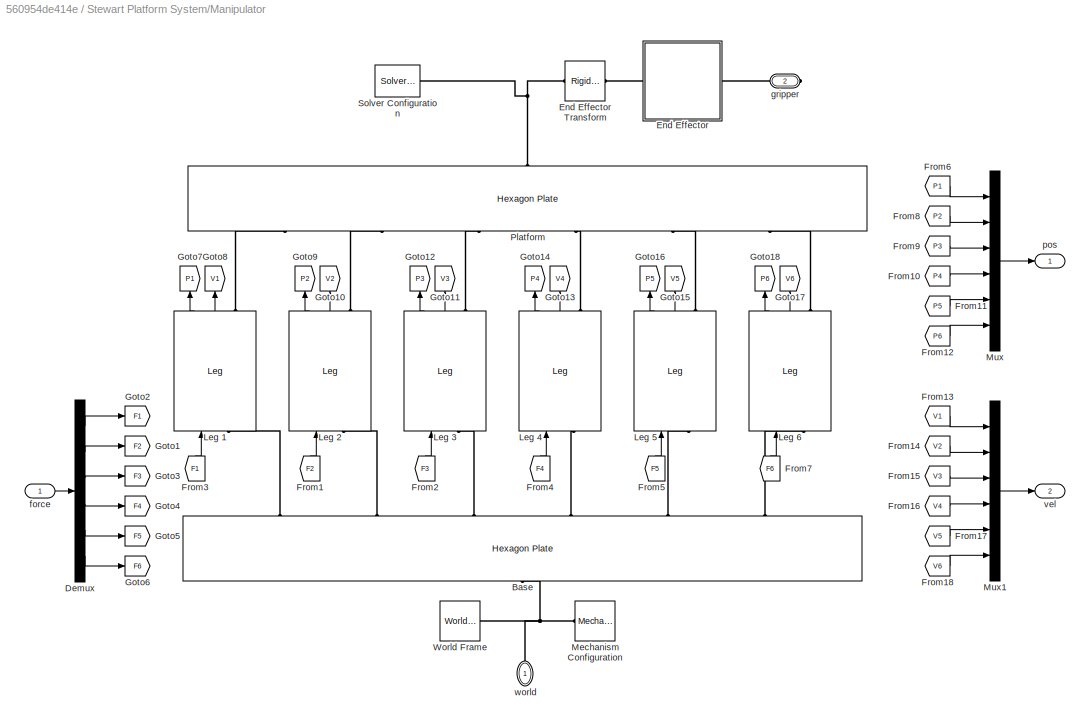
BLOCK [SubSystem] Stewart Platform System/Manipulator
  Ports = [1, 2, 0, 0, 0, 1, 1]
  RequestExecContextInheritance = off
BLOCK [Reference] Stewart Platform System/Manipulator/Base  REF=sm_stewart_platform_lib/Hexagon
Plate
  Ports = [0, 0, 0, 0, 0, 1, 6]
  SourceBlock = sm_stewart_platform_lib/Hexagon\nPlate
  SourceProductBaseCode = MS
  SourceProductName = Simscape Multibody
  SourceType = Hexagon Plate
BLOCK [Demux] Stewart Platform System/Manipulator/Demux
  DisplayOption = bar
  Outputs = 6
  Ports = [1, 6]
BLOCK [SubSystem] Stewart Platform System/Manipulator/End Effector
  Ports = [0, 0, 0, 0, 0, 1, 1]
  RequestExecContextInheritance = off
BLOCK [Reference] Stewart Platform System/Manipulator/End Effector Transform  REF=sm_lib/Frames and
Transforms/Rigid
Transform
  Ports = [0, 0, 0, 0, 0, 1, 1]
  SourceBlock = sm_lib/Frames and\nTransforms/Rigid\nTransform
  SourceProductBaseCode = MS
  SourceProductName = Simscape Multibody
  SourceType = Rigid\nTransform
BLOCK [SubSystem] Stewart Platform System/Manipulator/End Effector/Gripper
  Ports = [0, 0, 0, 0, 0, 1, 1]
  RequestExecContextInheritance = off
BLOCK [Reference] Stewart Platform System/Manipulator/End Effector/Gripper Transform  REF=sm_lib/Frames and
Transforms/Rigid
Transform
  Ports = [0, 0, 0, 0, 0, 1, 1]
  SourceBlock = sm_lib/Frames and\nTransforms/Rigid\nTransform
  SourceProductBaseCode = MS
  SourceProductName = Simscape Multibody
  SourceType = Rigid\nTransform
BLOCK [Reference] Stewart Platform System/Manipulator/End Effector/Gripper/Axes  REF=sm_lib/Body Elements/Graphic
  Ports = [0, 0, 0, 0, 0, 0, 1]
  SourceBlock = sm_lib/Body Elements/Graphic
  SourceProductBaseCode = MS
  SourceProductName = Simscape Multibody
  SourceType = Graphic
BLOCK [Reference] Stewart Platform System/Manipulator/End Effector/Gripper/Axes Transform  REF=sm_lib/Frames and
Transforms/Rigid
Transform
  Ports = [0, 0, 0, 0, 0, 1, 1]
  SourceBlock = sm_lib/Frames and\nTransforms/Rigid\nTransform
  SourceProductBaseCode = MS
  SourceProductName = Simscape Multibody
  SourceType = Rigid\nTransform
BLOCK [Reference] Stewart Platform System/Manipulator/End Effector/Gripper/Base  REF=sm_lib/Body Elements/Solid
  Ports = [0, 0, 0, 0, 0, 0, 1]
  SourceBlock = sm_lib/Body Elements/Solid
  SourceProductBaseCode = MS
  SourceProductName = Simscape Multibody
  SourceType = Solid
BLOCK [Reference] Stewart Platform System/Manipulator/End Effector/Gripper/Base Transform  REF=sm_lib/Frames and
Transforms/Rigid
Transform
  Ports = [0, 0, 0, 0, 0, 1, 1]
  SourceBlock = sm_lib/Frames and\nTransforms/Rigid\nTransform
  SourceProductBaseCode = MS
  SourceProductName = Simscape Multibody
  SourceType = Rigid\nTransform
BLOCK [Reference] Stewart Platform System/Manipulator/End Effector/Gripper/Claw 1  REF=sm_lib/Body Elements/Solid
  Ports = [0, 0, 0, 0, 0, 0, 1]
  SourceBlock = sm_lib/Body Elements/Solid
  SourceProductBaseCode = MS
  SourceProductName = Simscape Multibody
  SourceType = Solid
BLOCK [Reference] Stewart Platform System/Manipulator/End Effector/Gripper/Claw 2  REF=sm_lib/Body Elements/Solid
  Ports = [0, 0, 0, 0, 0, 0, 1]
  SourceBlock = sm_lib/Body Elements/Solid
  SourceProductBaseCode = MS
  SourceProductName = Simscape Multibody
  SourceType = Solid
BLOCK [Reference] Stewart Platform System/Manipulator/End Effector/Gripper/Claw 3  REF=sm_lib/Body Elements/Solid
  Ports = [0, 0, 0, 0, 0, 0, 1]
  SourceBlock = sm_lib/Body Elements/Solid
  SourceProductBaseCode = MS
  SourceProductName = Simscape Multibody
  SourceType = Solid
BLOCK [Reference] Stewart Platform System/Manipulator/End Effector/Gripper/Claw Transform 1  REF=sm_lib/Frames and
Transforms/Rigid
Transform
  Ports = [0, 0, 0, 0, 0, 1, 1]
  SourceBlock = sm_lib/Frames and\nTransforms/Rigid\nTransform
  SourceProductBaseCode = MS
  SourceProductName = Simscape Multibody
  SourceType = Rigid\nTransform
BLOCK [Reference] Stewart Platform System/Manipulator/End Effector/Gripper/Claw Transform 2  REF=sm_lib/Frames and
Transforms/Rigid
Transform
  Ports = [0, 0, 0, 0, 0, 1, 1]
  SourceBlock = sm_lib/Frames and\nTransforms/Rigid\nTransform
  SourceProductBaseCode = MS
  SourceProductName = Simscape Multibody
  SourceType = Rigid\nTransform
BLOCK [Reference] Stewart Platform System/Manipulator/End Effector/Gripper/Claw Transform 3  REF=sm_lib/Frames and
Transforms/Rigid
Transform
  Ports = [0, 0, 0, 0, 0, 1, 1]
  SourceBlock = sm_lib/Frames and\nTransforms/Rigid\nTransform
  SourceProductBaseCode = MS
  SourceProductName = Simscape Multibody
  SourceType = Rigid\nTransform
BLOCK [Reference] Stewart Platform System/Manipulator/End Effector/Gripper/Rot +120  REF=sm_lib/Frames and
Transforms/Rigid
Transform
  Ports = [0, 0, 0, 0, 0, 1, 1]
  SourceBlock = sm_lib/Frames and\nTransforms/Rigid\nTransform
  SourceProductBaseCode = MS
  SourceProductName = Simscape Multibody
  SourceType = Rigid\nTransform
BLOCK [Reference] Stewart Platform System/Manipulator/End Effector/Gripper/Rot -120  REF=sm_lib/Frames and
Transforms/Rigid
Transform
  Ports = [0, 0, 0, 0, 0, 1, 1]
  SourceBlock = sm_lib/Frames and\nTransforms/Rigid\nTransform
  SourceProductBaseCode = MS
  SourceProductName = Simscape Multibody
  SourceType = Rigid\nTransform
BLOCK [PMIOPort] Stewart Platform System/Manipulator/End Effector/Gripper/jaw
  Port = 2
  Side = Right
BLOCK [PMIOPort] Stewart Platform System/Manipulator/End Effector/Gripper/ref
  Side = Left
BLOCK [Reference] Stewart Platform System/Manipulator/End Effector/Reference Frame  REF=sm_lib/Frames and
Transforms/Reference
Frame
  Ports = [0, 0, 0, 0, 0, 0, 1]
  SourceBlock = sm_lib/Frames and\nTransforms/Reference\nFrame
  SourceProductBaseCode = MS
  SourceProductName = Simscape Multibody
  SourceType = Reference\nFrame
BLOCK [Reference] Stewart Platform System/Manipulator/End Effector/Support Shaft  REF=sm_lib/Body Elements/Solid
  Ports = [0, 0, 0, 0, 0, 0, 1]
  SourceBlock = sm_lib/Body Elements/Solid
  SourceProductBaseCode = MS
  SourceProductName = Simscape Multibody
  SourceType = Solid
BLOCK [Reference] Stewart Platform System/Manipulator/End Effector/Support Transform  REF=sm_lib/Frames and
Transforms/Rigid
Transform
  Ports = [0, 0, 0, 0, 0, 1, 1]
  SourceBlock = sm_lib/Frames and\nTransforms/Rigid\nTransform
  SourceProductBaseCode = MS
  SourceProductName = Simscape Multibody
  SourceType = Rigid\nTransform
BLOCK [PMIOPort] Stewart Platform System/Manipulator/End Effector/conn
  Side = Right
BLOCK [PMIOPort] Stewart Platform System/Manipulator/End Effector/grip
  Port = 2
  Side = Left
BLOCK [From] Stewart Platform System/Manipulator/From1
  CloseFcn = tagdialog Close
  GotoTag = F2
BLOCK [From] Stewart Platform System/Manipulator/From10
  CloseFcn = tagdialog Close
  GotoTag = P4
BLOCK [From] Stewart Platform System/Manipulator/From11
  CloseFcn = tagdialog Close
  GotoTag = P5
BLOCK [From] Stewart Platform System/Manipulator/From12
  CloseFcn = tagdialog Close
  GotoTag = P6
BLOCK [From] Stewart Platform System/Manipulator/From13
  CloseFcn = tagdialog Close
  GotoTag = V1
BLOCK [From] Stewart Platform System/Manipulator/From14
  CloseFcn = tagdialog Close
  GotoTag = V2
BLOCK [From] Stewart Platform System/Manipulator/From15
  CloseFcn = tagdialog Close
  GotoTag = V3
BLOCK [From] Stewart Platform System/Manipulator/From16
  CloseFcn = tagdialog Close
  GotoTag = V4
BLOCK [From] Stewart Platform System/Manipulator/From17
  CloseFcn = tagdialog Close
  GotoTag = V5
BLOCK [From] Stewart Platform System/Manipulator/From18
  CloseFcn = tagdialog Close
  GotoTag = V6
BLOCK [From] Stewart Platform System/Manipulator/From2
  CloseFcn = tagdialog Close
  GotoTag = F3
BLOCK [From] Stewart Platform System/Manipulator/From3
  CloseFcn = tagdialog Close
  GotoTag = F1
BLOCK [From] Stewart Platform System/Manipulator/From4
  CloseFcn = tagdialog Close
  GotoTag = F4
BLOCK [From] Stewart Platform System/Manipulator/From5
  CloseFcn = tagdialog Close
  GotoTag = F5
BLOCK [From] Stewart Platform System/Manipulator/From6
  CloseFcn = tagdialog Close
  GotoTag = P1
BLOCK [From] Stewart Platform System/Manipulator/From7
  CloseFcn = tagdialog Close
  GotoTag = F6
BLOCK [From] Stewart Platform System/Manipulator/From8
  CloseFcn = tagdialog Close
  GotoTag = P2
BLOCK [From] Stewart Platform System/Manipulator/From9
  CloseFcn = tagdialog Close
  GotoTag = P3
BLOCK [Goto] Stewart Platform System/Manipulator/Goto1
  GotoTag = F2
BLOCK [Goto] Stewart Platform System/Manipulator/Goto10
  GotoTag = V2
BLOCK [Goto] Stewart Platform System/Manipulator/Goto11
  GotoTag = V3
BLOCK [Goto] Stewart Platform System/Manipulator/Goto12
  GotoTag = P3
BLOCK [Goto] Stewart Platform System/Manipulator/Goto13
  GotoTag = V4
BLOCK [Goto] Stewart Platform System/Manipulator/Goto14
  GotoTag = P4
BLOCK [Goto] Stewart Platform System/Manipulator/Goto15
  GotoTag = V5
BLOCK [Goto] Stewart Platform System/Manipulator/Goto16
  GotoTag = P5
BLOCK [Goto] Stewart Platform System/Manipulator/Goto17
  GotoTag = V6
BLOCK [Goto] Stewart Platform System/Manipulator/Goto18
  GotoTag = P6
BLOCK [Goto] Stewart Platform System/Manipulator/Goto2
  GotoTag = F1
BLOCK [Goto] Stewart Platform System/Manipulator/Goto3
  GotoTag = F3
BLOCK [Goto] Stewart Platform System/Manipulator/Goto4
  GotoTag = F4
BLOCK [Goto] Stewart Platform System/Manipulator/Goto5
  GotoTag = F5
BLOCK [Goto] Stewart Platform System/Manipulator/Goto6
  GotoTag = F6
BLOCK [Goto] Stewart Platform System/Manipulator/Goto7
  GotoTag = P1
BLOCK [Goto] Stewart Platform System/Manipulator/Goto8
  GotoTag = V1
BLOCK [Goto] Stewart Platform System/Manipulator/Goto9
  GotoTag = P2
BLOCK [Reference] Stewart Platform System/Manipulator/Leg 1  REF=sm_stewart_platform_lib/Leg
  Ports = [1, 2, 0, 0, 0, 1, 1]
  SourceBlock = sm_stewart_platform_lib/Leg
  SourceProductBaseCode = MS
  SourceProductName = Simscape Multibody
  SourceType = Leg
BLOCK [Reference] Stewart Platform System/Manipulator/Leg 2  REF=sm_stewart_platform_lib/Leg
  Ports = [1, 2, 0, 0, 0, 1, 1]
  SourceBlock = sm_stewart_platform_lib/Leg
  SourceProductBaseCode = MS
  SourceProductName = Simscape Multibody
  SourceType = Leg
BLOCK [Reference] Stewart Platform System/Manipulator/Leg 3  REF=sm_stewart_platform_lib/Leg
  Ports = [1, 2, 0, 0, 0, 1, 1]
  SourceBlock = sm_stewart_platform_lib/Leg
  SourceProductBaseCode = MS
  SourceProductName = Simscape Multibody
  SourceType = Leg
BLOCK [Reference] Stewart Platform System/Manipulator/Leg 4  REF=sm_stewart_platform_lib/Leg
  Ports = [1, 2, 0, 0, 0, 1, 1]
  SourceBlock = sm_stewart_platform_lib/Leg
  SourceProductBaseCode = MS
  SourceProductName = Simscape Multibody
  SourceType = Leg
BLOCK [Reference] Stewart Platform System/Manipulator/Leg 5  REF=sm_stewart_platform_lib/Leg
  Ports = [1, 2, 0, 0, 0, 1, 1]
  SourceBlock = sm_stewart_platform_lib/Leg
  SourceProductBaseCode = MS
  SourceProductName = Simscape Multibody
  SourceType = Leg
BLOCK [Reference] Stewart Platform System/Manipulator/Leg 6  REF=sm_stewart_platform_lib/Leg
  Ports = [1, 2, 0, 0, 0, 1, 1]
  SourceBlock = sm_stewart_platform_lib/Leg
  SourceProductBaseCode = MS
  SourceProductName = Simscape Multibody
  SourceType = Leg
BLOCK [Reference] Stewart Platform System/Manipulator/Mechanism Configuration  REF=sm_lib/Utilities/Mechanism
Configuration
  Ports = [0, 0, 0, 0, 0, 0, 1]
  SourceBlock = sm_lib/Utilities/Mechanism\nConfiguration
  SourceProductBaseCode = MS
  SourceProductName = Simscape Multibody
  SourceType = Mechanism\nConfiguration
BLOCK [Mux] Stewart Platform System/Manipulator/Mux
  DisplayOption = bar
  Inputs = 6
  Ports = [6, 1]
BLOCK [Mux] Stewart Platform System/Manipulator/Mux1
  DisplayOption = bar
  Inputs = 6
  Ports = [6, 1]
BLOCK [Reference] Stewart Platform System/Manipulator/Platform  REF=sm_stewart_platform_lib/Hexagon
Plate
  Ports = [0, 0, 0, 0, 0, 1, 6]
  SourceBlock = sm_stewart_platform_lib/Hexagon\nPlate
  SourceProductBaseCode = MS
  SourceProductName = Simscape Multibody
  SourceType = Hexagon Plate
BLOCK [Reference] Stewart Platform System/Manipulator/Solver Configuration  REF=nesl_utility/Solver
Configuration
  Ports = [0, 0, 0, 0, 0, 0, 1]
  SourceBlock = nesl_utility/Solver\nConfiguration
  SourceProductBaseCode = SS
  SourceProductName = Simscape
  SourceType = Solver\nConfiguration
BLOCK [Reference] Stewart Platform System/Manipulator/World Frame  REF=sm_lib/Frames and
Transforms/World Frame
  Ports = [0, 0, 0, 0, 0, 0, 1]
  SourceBlock = sm_lib/Frames and\nTransforms/World Frame
  SourceProductBaseCode = MS
  SourceProductName = Simscape Multibody
  SourceType = World Frame
BLOCK [Inport] Stewart Platform System/Manipulator/force
  IconDisplay = Port number
BLOCK [PMIOPort] Stewart Platform System/Manipulator/gripper
  Port = 2
  Side = Right
BLOCK [Outport] Stewart Platform System/Manipulator/pos
  IconDisplay = Port number
BLOCK [Outport] Stewart Platform System/Manipulator/vel
  IconDisplay = Port number
  Port = 2
BLOCK [PMIOPort] Stewart Platform System/Manipulator/world
  Side = Left
BLOCK [Mux] Stewart Platform System/Mux
  DisplayOption = bar
  Inputs = 3
  Ports = [3, 1]
BLOCK [Outport] Stewart Platform System/Pos
  IconDisplay = Port number
BLOCK [Inport] Stewart Platform System/R
  IconDisplay = Port number
  Port = 2
BLOCK [Inport] Stewart Platform System/R'
  IconDisplay = Port number
  Port = 4
BLOCK [Sum] Stewart Platform System/Sum
  InputSameDT = off
  Inputs = +-
  OutDataTypeStr = Inherit: Inherit via internal rule
  Ports = [2, 1]
  SaturateOnIntegerOverflow = off
BLOCK [Inport] Stewart Platform System/d
  IconDisplay = Port number
BLOCK [Inport] Stewart Platform System/d'
  IconDisplay = Port number
  Port = 3
ANNOTATION Stewart Platform System/Inertial Position Sensor: `
LINE Demux:1 -> Gripper Position:1
LINE Demux:2 -> Gripper Position:2
LINE Demux:3 -> Gripper Position:3
NET Reference Trajectory Generator/Clock:1 -> Reference Trajectory Generator/Rx sinusoid:1, Reference Trajectory Generator/Ry sinusoid:1, Reference Trajectory Generator/Rz sinusoid:1, Reference Trajectory Generator/dx sinusoid:1, Reference Trajectory Generator/dy sinusoid:1, Reference Trajectory Generator/dz sinusoid:1
LINE Reference Trajectory Generator/Euler XYZ Derivative/Add:1 -> Reference Trajectory Generator/Euler XYZ Derivative/R':1
LINE Reference Trajectory Generator/Euler XYZ Derivative/Gain:1 -> Reference Trajectory Generator/Euler XYZ Derivative/Prod5:2
LINE Reference Trajectory Generator/Euler XYZ Derivative/Matrix Concatenate:1 -> Reference Trajectory Generator/Euler XYZ Derivative/Add:2
LINE Reference Trajectory Generator/Euler XYZ Derivative/Mux5:1 -> Reference Trajectory Generator/Euler XYZ Derivative/Skew Op:1
LINE Reference Trajectory Generator/Euler XYZ Derivative/Prod1:1 -> Reference Trajectory Generator/Euler XYZ Derivative/Mux5:3
LINE Reference Trajectory Generator/Euler XYZ Derivative/Prod2:1 -> Reference Trajectory Generator/Euler XYZ Derivative/Mux5:2
LINE Reference Trajectory Generator/Euler XYZ Derivative/Prod3:1 -> Reference Trajectory Generator/Euler XYZ Derivative/Add:1
LINE Reference Trajectory Generator/Euler XYZ Derivative/Prod4:1 -> Reference Trajectory Generator/Euler XYZ Derivative/Matrix Concatenate:1
LINE Reference Trajectory Generator/Euler XYZ Derivative/Prod5:1 -> Reference Trajectory Generator/Euler XYZ Derivative/Matrix Concatenate:2
LINE Reference Trajectory Generator/Euler XYZ Derivative/R1:1 -> Reference Trajectory Generator/Euler XYZ Derivative/Prod5:1
LINE Reference Trajectory Generator/Euler XYZ Derivative/R2:1 -> Reference Trajectory Generator/Euler XYZ Derivative/Prod4:1
NET Reference Trajectory Generator/Euler XYZ Derivative/R:1 -> Reference Trajectory Generator/Euler XYZ Derivative/Prod3:2, Reference Trajectory Generator/Euler XYZ Derivative/R1:1, Reference Trajectory Generator/Euler XYZ Derivative/R2:1
LINE Reference Trajectory Generator/Euler XYZ Derivative/Skew Op/Demux1:1 -> Reference Trajectory Generator/Euler XYZ Derivative/Skew Op/Mux6:8
LINE Reference Trajectory Generator/Euler XYZ Derivative/Skew Op/Demux1:2 -> Reference Trajectory Generator/Euler XYZ Derivative/Skew Op/Mux6:3
LINE Reference Trajectory Generator/Euler XYZ Derivative/Skew Op/Demux1:3 -> Reference Trajectory Generator/Euler XYZ Derivative/Skew Op/Mux6:4
LINE Reference Trajectory Generator/Euler XYZ Derivative/Skew Op/Demux:1 -> Reference Trajectory Generator/Euler XYZ Derivative/Skew Op/Mux6:6
LINE Reference Trajectory Generator/Euler XYZ Derivative/Skew Op/Demux:2 -> Reference Trajectory Generator/Euler XYZ Derivative/Skew Op/Mux6:7
LINE Reference Trajectory Generator/Euler XYZ Derivative/Skew Op/Demux:3 -> Reference Trajectory Generator/Euler XYZ Derivative/Skew Op/Mux6:2
LINE Reference Trajectory Generator/Euler XYZ Derivative/Skew Op/Gain:1 -> Reference Trajectory Generator/Euler XYZ Derivative/Skew Op/Demux1:1
LINE Reference Trajectory Generator/Euler XYZ Derivative/Skew Op/Mux6:1 -> Reference Trajectory Generator/Euler XYZ Derivative/Skew Op/Reshape 9x1->3x3:1
LINE Reference Trajectory Generator/Euler XYZ Derivative/Skew Op/Reshape 9x1->3x3:1 -> Reference Trajectory Generator/Euler XYZ Derivative/Skew Op/v~:1
NET Reference Trajectory Generator/Euler XYZ Derivative/Skew Op/Zero:1 -> Reference Trajectory Generator/Euler XYZ Derivative/Skew Op/Mux6:1, Reference Trajectory Generator/Euler XYZ Derivative/Skew Op/Mux6:5, Reference Trajectory Generator/Euler XYZ Derivative/Skew Op/Mux6:9
NET Reference Trajectory Generator/Euler XYZ Derivative/Skew Op/v:1 -> Reference Trajectory Generator/Euler XYZ Derivative/Skew Op/Demux:1, Reference Trajectory Generator/Euler XYZ Derivative/Skew Op/Gain:1
LINE Reference Trajectory Generator/Euler XYZ Derivative/Skew Op:1 -> Reference Trajectory Generator/Euler XYZ Derivative/Prod3:1
NET Reference Trajectory Generator/Euler XYZ Derivative/Vector Concatenate:1 -> Reference Trajectory Generator/Euler XYZ Derivative/Gain:1, Reference Trajectory Generator/Euler XYZ Derivative/Prod4:2
LINE Reference Trajectory Generator/Euler XYZ Derivative/Zero Col:1 -> Reference Trajectory Generator/Euler XYZ Derivative/Matrix Concatenate:3
LINE Reference Trajectory Generator/Euler XYZ Derivative/a':1 -> Reference Trajectory Generator/Euler XYZ Derivative/Mux5:1
LINE Reference Trajectory Generator/Euler XYZ Derivative/a:1 -> Reference Trajectory Generator/Euler XYZ Derivative/sin cos:1
NET Reference Trajectory Generator/Euler XYZ Derivative/b':1 -> Reference Trajectory Generator/Euler XYZ Derivative/Prod1:1, Reference Trajectory Generator/Euler XYZ Derivative/Prod2:1
NET Reference Trajectory Generator/Euler XYZ Derivative/c':1 -> Reference Trajectory Generator/Euler XYZ Derivative/Vector Concatenate:1, Reference Trajectory Generator/Euler XYZ Derivative/Vector Concatenate:2, Reference Trajectory Generator/Euler XYZ Derivative/Vector Concatenate:3
LINE Reference Trajectory Generator/Euler XYZ Derivative/sin cos:1 -> Reference Trajectory Generator/Euler XYZ Derivative/Prod1:2
LINE Reference Trajectory Generator/Euler XYZ Derivative/sin cos:2 -> Reference Trajectory Generator/Euler XYZ Derivative/Prod2:2
LINE Reference Trajectory Generator/Euler XYZ Derivative:1 -> Reference Trajectory Generator/R':1
LINE Reference Trajectory Generator/Euler XYZ/11:1 -> Reference Trajectory Generator/Euler XYZ/Mux2:1
LINE Reference Trajectory Generator/Euler XYZ/12:1 -> Reference Trajectory Generator/Euler XYZ/Mux2:4
LINE Reference Trajectory Generator/Euler XYZ/13:1 -> Reference Trajectory Generator/Euler XYZ/Mux2:7
LINE Reference Trajectory Generator/Euler XYZ/21:1 -> Reference Trajectory Generator/Euler XYZ/Mux2:2
LINE Reference Trajectory Generator/Euler XYZ/22:1 -> Reference Trajectory Generator/Euler XYZ/Mux2:5
LINE Reference Trajectory Generator/Euler XYZ/23:1 -> Reference Trajectory Generator/Euler XYZ/Mux2:8
LINE Reference Trajectory Generator/Euler XYZ/31:1 -> Reference Trajectory Generator/Euler XYZ/Mux2:3
LINE Reference Trajectory Generator/Euler XYZ/32:1 -> Reference Trajectory Generator/Euler XYZ/Mux2:6
LINE Reference Trajectory Generator/Euler XYZ/33:1 -> Reference Trajectory Generator/Euler XYZ/Mux2:9
LINE Reference Trajectory Generator/Euler XYZ/Mux2:1 -> Reference Trajectory Generator/Euler XYZ/Reshape 9x1->3x3:1
LINE Reference Trajectory Generator/Euler XYZ/Reshape 9x1->3x3:1 -> Reference Trajectory Generator/Euler XYZ/R:1
NET Reference Trajectory Generator/Euler XYZ/angles:1 -> Reference Trajectory Generator/Euler XYZ/11:1, Reference Trajectory Generator/Euler XYZ/12:1, Reference Trajectory Generator/Euler XYZ/13:1, Reference Trajectory Generator/Euler XYZ/21:1, Reference Trajectory Generator/Euler XYZ/22:1, Reference Trajectory Generator/Euler XYZ/23:1, Reference Trajectory Generator/Euler XYZ/31:1, Reference Trajectory Generator/Euler XYZ/32:1, Reference Trajectory Generator/Euler XYZ/33:1
NET Reference Trajectory Generator/Euler XYZ:1 -> Reference Trajectory Generator/Euler XYZ Derivative:1, Reference Trajectory Generator/R:1
LINE Reference Trajectory Generator/Mux1:1 -> Reference Trajectory Generator/Euler XYZ:1
LINE Reference Trajectory Generator/Mux3:1 -> Reference Trajectory Generator/d:1
LINE Reference Trajectory Generator/Mux4:1 -> Reference Trajectory Generator/d':1
LINE Reference Trajectory Generator/Rx sinusoid/Add2:1 -> Reference Trajectory Generator/Rx sinusoid/f:1
LINE Reference Trajectory Generator/Rx sinusoid/Add:1 -> Reference Trajectory Generator/Rx sinusoid/deg2rad:1
LINE Reference Trajectory Generator/Rx sinusoid/amp1:1 -> Reference Trajectory Generator/Rx sinusoid/Add2:2
LINE Reference Trajectory Generator/Rx sinusoid/amp2:1 -> Reference Trajectory Generator/Rx sinusoid/f':1
LINE Reference Trajectory Generator/Rx sinusoid/deg2rad:1 -> Reference Trajectory Generator/Rx sinusoid/sin cos:1
LINE Reference Trajectory Generator/Rx sinusoid/freq:1 -> Reference Trajectory Generator/Rx sinusoid/Add:1
LINE Reference Trajectory Generator/Rx sinusoid/offset:1 -> Reference Trajectory Generator/Rx sinusoid/Add2:1
LINE Reference Trajectory Generator/Rx sinusoid/phase:1 -> Reference Trajectory Generator/Rx sinusoid/Add:2
LINE Reference Trajectory Generator/Rx sinusoid/sin cos:1 -> Reference Trajectory Generator/Rx sinusoid/amp1:1
LINE Reference Trajectory Generator/Rx sinusoid/sin cos:2 -> Reference Trajectory Generator/Rx sinusoid/amp2:1
LINE Reference Trajectory Generator/Rx sinusoid/t:1 -> Reference Trajectory Generator/Rx sinusoid/freq:1
NET Reference Trajectory Generator/Rx sinusoid:1 -> Reference Trajectory Generator/Euler XYZ Derivative:2, Reference Trajectory Generator/Mux1:1
LINE Reference Trajectory Generator/Rx sinusoid:2 -> Reference Trajectory Generator/Euler XYZ Derivative:3
LINE Reference Trajectory Generator/Ry sinusoid/Add2:1 -> Reference Trajectory Generator/Ry sinusoid/f:1
LINE Reference Trajectory Generator/Ry sinusoid/Add:1 -> Reference Trajectory Generator/Ry sinusoid/deg2rad:1
LINE Reference Trajectory Generator/Ry sinusoid/amp1:1 -> Reference Trajectory Generator/Ry sinusoid/Add2:2
LINE Reference Trajectory Generator/Ry sinusoid/amp2:1 -> Reference Trajectory Generator/Ry sinusoid/f':1
LINE Reference Trajectory Generator/Ry sinusoid/deg2rad:1 -> Reference Trajectory Generator/Ry sinusoid/sin cos:1
LINE Reference Trajectory Generator/Ry sinusoid/freq:1 -> Reference Trajectory Generator/Ry sinusoid/Add:1
LINE Reference Trajectory Generator/Ry sinusoid/offset:1 -> Reference Trajectory Generator/Ry sinusoid/Add2:1
LINE Reference Trajectory Generator/Ry sinusoid/phase:1 -> Reference Trajectory Generator/Ry sinusoid/Add:2
LINE Reference Trajectory Generator/Ry sinusoid/sin cos:1 -> Reference Trajectory Generator/Ry sinusoid/amp1:1
LINE Reference Trajectory Generator/Ry sinusoid/sin cos:2 -> Reference Trajectory Generator/Ry sinusoid/amp2:1
LINE Reference Trajectory Generator/Ry sinusoid/t:1 -> Reference Trajectory Generator/Ry sinusoid/freq:1
LINE Reference Trajectory Generator/Ry sinusoid:1 -> Reference Trajectory Generator/Mux1:2
LINE Reference Trajectory Generator/Ry sinusoid:2 -> Reference Trajectory Generator/Euler XYZ Derivative:4
LINE Reference Trajectory Generator/Rz sinusoid/Add2:1 -> Reference Trajectory Generator/Rz sinusoid/f:1
LINE Reference Trajectory Generator/Rz sinusoid/Add:1 -> Reference Trajectory Generator/Rz sinusoid/deg2rad:1
LINE Reference Trajectory Generator/Rz sinusoid/amp1:1 -> Reference Trajectory Generator/Rz sinusoid/Add2:2
LINE Reference Trajectory Generator/Rz sinusoid/amp2:1 -> Reference Trajectory Generator/Rz sinusoid/f':1
LINE Reference Trajectory Generator/Rz sinusoid/deg2rad:1 -> Reference Trajectory Generator/Rz sinusoid/sin cos:1
LINE Reference Trajectory Generator/Rz sinusoid/freq:1 -> Reference Trajectory Generator/Rz sinusoid/Add:1
LINE Reference Trajectory Generator/Rz sinusoid/offset:1 -> Reference Trajectory Generator/Rz sinusoid/Add2:1
LINE Reference Trajectory Generator/Rz sinusoid/phase:1 -> Reference Trajectory Generator/Rz sinusoid/Add:2
LINE Reference Trajectory Generator/Rz sinusoid/sin cos:1 -> Reference Trajectory Generator/Rz sinusoid/amp1:1
LINE Reference Trajectory Generator/Rz sinusoid/sin cos:2 -> Reference Trajectory Generator/Rz sinusoid/amp2:1
LINE Reference Trajectory Generator/Rz sinusoid/t:1 -> Reference Trajectory Generator/Rz sinusoid/freq:1
LINE Reference Trajectory Generator/Rz sinusoid:1 -> Reference Trajectory Generator/Mux1:3
LINE Reference Trajectory Generator/Rz sinusoid:2 -> Reference Trajectory Generator/Euler XYZ Derivative:5
LINE Reference Trajectory Generator/dx sinusoid/Add2:1 -> Reference Trajectory Generator/dx sinusoid/f:1
LINE Reference Trajectory Generator/dx sinusoid/Add:1 -> Reference Trajectory Generator/dx sinusoid/deg2rad:1
LINE Reference Trajectory Generator/dx sinusoid/amp1:1 -> Reference Trajectory Generator/dx sinusoid/Add2:2
LINE Reference Trajectory Generator/dx sinusoid/amp2:1 -> Reference Trajectory Generator/dx sinusoid/f':1
LINE Reference Trajectory Generator/dx sinusoid/deg2rad:1 -> Reference Trajectory Generator/dx sinusoid/sin cos:1
LINE Reference Trajectory Generator/dx sinusoid/freq:1 -> Reference Trajectory Generator/dx sinusoid/Add:1
LINE Reference Trajectory Generator/dx sinusoid/offset:1 -> Reference Trajectory Generator/dx sinusoid/Add2:1
LINE Reference Trajectory Generator/dx sinusoid/phase:1 -> Reference Trajectory Generator/dx sinusoid/Add:2
LINE Reference Trajectory Generator/dx sinusoid/sin cos:1 -> Reference Trajectory Generator/dx sinusoid/amp1:1
LINE Reference Trajectory Generator/dx sinusoid/sin cos:2 -> Reference Trajectory Generator/dx sinusoid/amp2:1
LINE Reference Trajectory Generator/dx sinusoid/t:1 -> Reference Trajectory Generator/dx sinusoid/freq:1
LINE Reference Trajectory Generator/dx sinusoid:1 -> Reference Trajectory Generator/Mux3:1
LINE Reference Trajectory Generator/dx sinusoid:2 -> Reference Trajectory Generator/Mux4:1
LINE Reference Trajectory Generator/dy sinusoid/Add2:1 -> Reference Trajectory Generator/dy sinusoid/f:1
LINE Reference Trajectory Generator/dy sinusoid/Add:1 -> Reference Trajectory Generator/dy sinusoid/deg2rad:1
LINE Reference Trajectory Generator/dy sinusoid/amp1:1 -> Reference Trajectory Generator/dy sinusoid/Add2:2
LINE Reference Trajectory Generator/dy sinusoid/amp2:1 -> Reference Trajectory Generator/dy sinusoid/f':1
LINE Reference Trajectory Generator/dy sinusoid/deg2rad:1 -> Reference Trajectory Generator/dy sinusoid/sin cos:1
LINE Reference Trajectory Generator/dy sinusoid/freq:1 -> Reference Trajectory Generator/dy sinusoid/Add:1
LINE Reference Trajectory Generator/dy sinusoid/offset:1 -> Reference Trajectory Generator/dy sinusoid/Add2:1
LINE Reference Trajectory Generator/dy sinusoid/phase:1 -> Reference Trajectory Generator/dy sinusoid/Add:2
LINE Reference Trajectory Generator/dy sinusoid/sin cos:1 -> Reference Trajectory Generator/dy sinusoid/amp1:1
LINE Reference Trajectory Generator/dy sinusoid/sin cos:2 -> Reference Trajectory Generator/dy sinusoid/amp2:1
LINE Reference Trajectory Generator/dy sinusoid/t:1 -> Reference Trajectory Generator/dy sinusoid/freq:1
LINE Reference Trajectory Generator/dy sinusoid:1 -> Reference Trajectory Generator/Mux3:2
LINE Reference Trajectory Generator/dy sinusoid:2 -> Reference Trajectory Generator/Mux4:2
LINE Reference Trajectory Generator/dz sinusoid/Add2:1 -> Reference Trajectory Generator/dz sinusoid/f:1
LINE Reference Trajectory Generator/dz sinusoid/Add:1 -> Reference Trajectory Generator/dz sinusoid/deg2rad:1
LINE Reference Trajectory Generator/dz sinusoid/amp1:1 -> Reference Trajectory Generator/dz sinusoid/Add2:2
LINE Reference Trajectory Generator/dz sinusoid/amp2:1 -> Reference Trajectory Generator/dz sinusoid/f':1
LINE Reference Trajectory Generator/dz sinusoid/deg2rad:1 -> Reference Trajectory Generator/dz sinusoid/sin cos:1
LINE Reference Trajectory Generator/dz sinusoid/freq:1 -> Reference Trajectory Generator/dz sinusoid/Add:1
LINE Reference Trajectory Generator/dz sinusoid/offset:1 -> Reference Trajectory Generator/dz sinusoid/Add2:1
LINE Reference Trajectory Generator/dz sinusoid/phase:1 -> Reference Trajectory Generator/dz sinusoid/Add:2
LINE Reference Trajectory Generator/dz sinusoid/sin cos:1 -> Reference Trajectory Generator/dz sinusoid/amp1:1
LINE Reference Trajectory Generator/dz sinusoid/sin cos:2 -> Reference Trajectory Generator/dz sinusoid/amp2:1
LINE Reference Trajectory Generator/dz sinusoid/t:1 -> Reference Trajectory Generator/dz sinusoid/freq:1
LINE Reference Trajectory Generator/dz sinusoid:1 -> Reference Trajectory Generator/Mux3:3
LINE Reference Trajectory Generator/dz sinusoid:2 -> Reference Trajectory Generator/Mux4:3
LINE Reference Trajectory Generator:1 -> Stewart Platform System:1
LINE Reference Trajectory Generator:2 -> Stewart Platform System:2
LINE Reference Trajectory Generator:3 -> Stewart Platform System:3
LINE Reference Trajectory Generator:4 -> Stewart Platform System:4
LINE Stewart Platform System/Ctrl/Mux1:1 -> Stewart Platform System/Ctrl/S-Function:1
LINE Stewart Platform System/Ctrl/S-Function:1 -> Stewart Platform System/Ctrl/force:1
LINE Stewart Platform System/Ctrl/act_pos:1 -> Stewart Platform System/Ctrl/Mux1:4
LINE Stewart Platform System/Ctrl/act_vel:1 -> Stewart Platform System/Ctrl/Mux1:5
LINE Stewart Platform System/Ctrl/des_acc:1 -> Stewart Platform System/Ctrl/Mux1:3
LINE Stewart Platform System/Ctrl/des_pos:1 -> Stewart Platform System/Ctrl/Mux1:1
LINE Stewart Platform System/Ctrl/des_vel:1 -> Stewart Platform System/Ctrl/Mux1:2
LINE Stewart Platform System/Ctrl:1 -> Stewart Platform System/Manipulator:1
LINE Stewart Platform System/Demux1:1 -> Stewart Platform System/Actual Leg Positions:1
LINE Stewart Platform System/Demux1:2 -> Stewart Platform System/Actual Leg Positions:2
LINE Stewart Platform System/Demux1:3 -> Stewart Platform System/Actual Leg Positions:3
LINE Stewart Platform System/Demux1:4 -> Stewart Platform System/Actual Leg Positions:4
LINE Stewart Platform System/Demux1:5 -> Stewart Platform System/Actual Leg Positions:5
LINE Stewart Platform System/Demux1:6 -> Stewart Platform System/Actual Leg Positions:6
LINE Stewart Platform System/Demux2:1 -> Stewart Platform System/Leg Position Error:1
LINE Stewart Platform System/Demux2:2 -> Stewart Platform System/Leg Position Error:2
LINE Stewart Platform System/Demux2:3 -> Stewart Platform System/Leg Position Error:3
LINE Stewart Platform System/Demux2:4 -> Stewart Platform System/Leg Position Error:4
LINE Stewart Platform System/Demux2:5 -> Stewart Platform System/Leg Position Error:5
LINE Stewart Platform System/Demux2:6 -> Stewart Platform System/Leg Position Error:6
LINE Stewart Platform System/Demux:1 -> Stewart Platform System/Desired Leg Positions:1
LINE Stewart Platform System/Demux:2 -> Stewart Platform System/Desired Leg Positions:2
LINE Stewart Platform System/Demux:3 -> Stewart Platform System/Desired Leg Positions:3
LINE Stewart Platform System/Demux:4 -> Stewart Platform System/Desired Leg Positions:4
LINE Stewart Platform System/Demux:5 -> Stewart Platform System/Desired Leg Positions:5
LINE Stewart Platform System/Demux:6 -> Stewart Platform System/Desired Leg Positions:6
LINE Stewart Platform System/Inertial Position Sensor/Pos X Converter:1 -> Stewart Platform System/Inertial Position Sensor/pos x:1
LINE Stewart Platform System/Inertial Position Sensor/Pos Y Converter1:1 -> Stewart Platform System/Inertial Position Sensor/pos y:1
LINE Stewart Platform System/Inertial Position Sensor/Pos Z Converter2:1 -> Stewart Platform System/Inertial Position Sensor/pos z:1
LINE Stewart Platform System/Inertial Position Sensor:1 -> Stewart Platform System/Mux:1
LINE Stewart Platform System/Inertial Position Sensor:2 -> Stewart Platform System/Mux:2
LINE Stewart Platform System/Inertial Position Sensor:3 -> Stewart Platform System/Mux:3
LINE Stewart Platform System/Inverse Kinematics Module/Base Points:1 -> Stewart Platform System/Inverse Kinematics Module/Pos Computation:4
LINE Stewart Platform System/Inverse Kinematics Module/Derivative:1 -> Stewart Platform System/Inverse Kinematics Module/acc:1
LINE Stewart Platform System/Inverse Kinematics Module/Div1:1 -> Stewart Platform System/Inverse Kinematics Module/Joint Velocities:1
LINE Stewart Platform System/Inverse Kinematics Module/Div2:1 -> Stewart Platform System/Inverse Kinematics Module/Joint Velocities:2
LINE Stewart Platform System/Inverse Kinematics Module/Div3:1 -> Stewart Platform System/Inverse Kinematics Module/Joint Velocities:3
LINE Stewart Platform System/Inverse Kinematics Module/Div4:1 -> Stewart Platform System/Inverse Kinematics Module/Joint Velocities:4
LINE Stewart Platform System/Inverse Kinematics Module/Div5:1 -> Stewart Platform System/Inverse Kinematics Module/Joint Velocities:5
LINE Stewart Platform System/Inverse Kinematics Module/Div6:1 -> Stewart Platform System/Inverse Kinematics Module/Joint Velocities:6
LINE Stewart Platform System/Inverse Kinematics Module/Dot1:1 -> Stewart Platform System/Inverse Kinematics Module/Div1:1
LINE Stewart Platform System/Inverse Kinematics Module/Dot2:1 -> Stewart Platform System/Inverse Kinematics Module/Div2:1
LINE Stewart Platform System/Inverse Kinematics Module/Dot3:1 -> Stewart Platform System/Inverse Kinematics Module/Div3:1
LINE Stewart Platform System/Inverse Kinematics Module/Dot4:1 -> Stewart Platform System/Inverse Kinematics Module/Div4:1
LINE Stewart Platform System/Inverse Kinematics Module/Dot5:1 -> Stewart Platform System/Inverse Kinematics Module/Div5:1
LINE Stewart Platform System/Inverse Kinematics Module/Dot6:1 -> Stewart Platform System/Inverse Kinematics Module/Div6:1
LINE Stewart Platform System/Inverse Kinematics Module/Joint Positions:1 -> Stewart Platform System/Inverse Kinematics Module/Sum1:1
NET Stewart Platform System/Inverse Kinematics Module/Joint Velocities:1 -> Stewart Platform System/Inverse Kinematics Module/Derivative:1, Stewart Platform System/Inverse Kinematics Module/vel:1
LINE Stewart Platform System/Inverse Kinematics Module/Nominal Length x 6:1 -> Stewart Platform System/Inverse Kinematics Module/Sum1:2
LINE Stewart Platform System/Inverse Kinematics Module/Norm 1/Dot Product:1 -> Stewart Platform System/Inverse Kinematics Module/Norm 1/Sqrt:1
LINE Stewart Platform System/Inverse Kinematics Module/Norm 1/Sqrt:1 -> Stewart Platform System/Inverse Kinematics Module/Norm 1/||v||:1
NET Stewart Platform System/Inverse Kinematics Module/Norm 1/v:1 -> Stewart Platform System/Inverse Kinematics Module/Norm 1/Dot Product:1, Stewart Platform System/Inverse Kinematics Module/Norm 1/Dot Product:2
NET Stewart Platform System/Inverse Kinematics Module/Norm 1:1 -> Stewart Platform System/Inverse Kinematics Module/Div1:2, Stewart Platform System/Inverse Kinematics Module/Joint Positions:1
LINE Stewart Platform System/Inverse Kinematics Module/Norm 2/Dot Product:1 -> Stewart Platform System/Inverse Kinematics Module/Norm 2/Sqrt:1
LINE Stewart Platform System/Inverse Kinematics Module/Norm 2/Sqrt:1 -> Stewart Platform System/Inverse Kinematics Module/Norm 2/||v||:1
NET Stewart Platform System/Inverse Kinematics Module/Norm 2/v:1 -> Stewart Platform System/Inverse Kinematics Module/Norm 2/Dot Product:1, Stewart Platform System/Inverse Kinematics Module/Norm 2/Dot Product:2
NET Stewart Platform System/Inverse Kinematics Module/Norm 2:1 -> Stewart Platform System/Inverse Kinematics Module/Div2:2, Stewart Platform System/Inverse Kinematics Module/Joint Positions:2
LINE Stewart Platform System/Inverse Kinematics Module/Norm 3/Dot Product:1 -> Stewart Platform System/Inverse Kinematics Module/Norm 3/Sqrt:1
LINE Stewart Platform System/Inverse Kinematics Module/Norm 3/Sqrt:1 -> Stewart Platform System/Inverse Kinematics Module/Norm 3/||v||:1
NET Stewart Platform System/Inverse Kinematics Module/Norm 3/v:1 -> Stewart Platform System/Inverse Kinematics Module/Norm 3/Dot Product:1, Stewart Platform System/Inverse Kinematics Module/Norm 3/Dot Product:2
NET Stewart Platform System/Inverse Kinematics Module/Norm 3:1 -> Stewart Platform System/Inverse Kinematics Module/Div3:2, Stewart Platform System/Inverse Kinematics Module/Joint Positions:3
LINE Stewart Platform System/Inverse Kinematics Module/Norm 4/Dot Product:1 -> Stewart Platform System/Inverse Kinematics Module/Norm 4/Sqrt:1
LINE Stewart Platform System/Inverse Kinematics Module/Norm 4/Sqrt:1 -> Stewart Platform System/Inverse Kinematics Module/Norm 4/||v||:1
NET Stewart Platform System/Inverse Kinematics Module/Norm 4/v:1 -> Stewart Platform System/Inverse Kinematics Module/Norm 4/Dot Product:1, Stewart Platform System/Inverse Kinematics Module/Norm 4/Dot Product:2
NET Stewart Platform System/Inverse Kinematics Module/Norm 4:1 -> Stewart Platform System/Inverse Kinematics Module/Div4:2, Stewart Platform System/Inverse Kinematics Module/Joint Positions:4
LINE Stewart Platform System/Inverse Kinematics Module/Norm 5/Dot Product:1 -> Stewart Platform System/Inverse Kinematics Module/Norm 5/Sqrt:1
LINE Stewart Platform System/Inverse Kinematics Module/Norm 5/Sqrt:1 -> Stewart Platform System/Inverse Kinematics Module/Norm 5/||v||:1
NET Stewart Platform System/Inverse Kinematics Module/Norm 5/v:1 -> Stewart Platform System/Inverse Kinematics Module/Norm 5/Dot Product:1, Stewart Platform System/Inverse Kinematics Module/Norm 5/Dot Product:2
NET Stewart Platform System/Inverse Kinematics Module/Norm 5:1 -> Stewart Platform System/Inverse Kinematics Module/Div5:2, Stewart Platform System/Inverse Kinematics Module/Joint Positions:5
LINE Stewart Platform System/Inverse Kinematics Module/Norm 6/Dot Product:1 -> Stewart Platform System/Inverse Kinematics Module/Norm 6/Sqrt:1
LINE Stewart Platform System/Inverse Kinematics Module/Norm 6/Sqrt:1 -> Stewart Platform System/Inverse Kinematics Module/Norm 6/||v||:1
NET Stewart Platform System/Inverse Kinematics Module/Norm 6/v:1 -> Stewart Platform System/Inverse Kinematics Module/Norm 6/Dot Product:1, Stewart Platform System/Inverse Kinematics Module/Norm 6/Dot Product:2
NET Stewart Platform System/Inverse Kinematics Module/Norm 6:1 -> Stewart Platform System/Inverse Kinematics Module/Div6:2, Stewart Platform System/Inverse Kinematics Module/Joint Positions:6
NET Stewart Platform System/Inverse Kinematics Module/Platform Points:1 -> Stewart Platform System/Inverse Kinematics Module/Pos Computation:3, Stewart Platform System/Inverse Kinematics Module/Vel Computation:3
NET Stewart Platform System/Inverse Kinematics Module/Pos Computation/6-Way Column Splitter/A:1 -> Stewart Platform System/Inverse Kinematics Module/Pos Computation/6-Way Column Splitter/Column 1:1, Stewart Platform System/Inverse Kinematics Module/Pos Computation/6-Way Column Splitter/Column 2:1, Stewart Platform System/Inverse Kinematics Module/Pos Computation/6-Way Column Splitter/Column 3:1, Stewart Platform System/Inverse Kinematics Module/Pos Computation/6-Way Column Splitter/Column 4:1, Stewart Platform System/Inverse Kinematics Module/Pos Computation/6-Way Column Splitter/Column 5:1, Stewart Platform System/Inverse Kinematics Module/Pos Computation/6-Way Column Splitter/Column 6:1
LINE Stewart Platform System/Inverse Kinematics Module/Pos Computation/6-Way Column Splitter/Column 1:1 -> Stewart Platform System/Inverse Kinematics Module/Pos Computation/6-Way Column Splitter/Col1:1
LINE Stewart Platform System/Inverse Kinematics Module/Pos Computation/6-Way Column Splitter/Column 2:1 -> Stewart Platform System/Inverse Kinematics Module/Pos Computation/6-Way Column Splitter/Col2:1
LINE Stewart Platform System/Inverse Kinematics Module/Pos Computation/6-Way Column Splitter/Column 3:1 -> Stewart Platform System/Inverse Kinematics Module/Pos Computation/6-Way Column Splitter/Col3:1
LINE Stewart Platform System/Inverse Kinematics Module/Pos Computation/6-Way Column Splitter/Column 4:1 -> Stewart Platform System/Inverse Kinematics Module/Pos Computation/6-Way Column Splitter/Col4:1
LINE Stewart Platform System/Inverse Kinematics Module/Pos Computation/6-Way Column Splitter/Column 5:1 -> Stewart Platform System/Inverse Kinematics Module/Pos Computation/6-Way Column Splitter/Col5:1
LINE Stewart Platform System/Inverse Kinematics Module/Pos Computation/6-Way Column Splitter/Column 6:1 -> Stewart Platform System/Inverse Kinematics Module/Pos Computation/6-Way Column Splitter/Col6:1
LINE Stewart Platform System/Inverse Kinematics Module/Pos Computation/6-Way Column Splitter:1 -> Stewart Platform System/Inverse Kinematics Module/Pos Computation/offset1:1
LINE Stewart Platform System/Inverse Kinematics Module/Pos Computation/6-Way Column Splitter:2 -> Stewart Platform System/Inverse Kinematics Module/Pos Computation/offset2:1
LINE Stewart Platform System/Inverse Kinematics Module/Pos Computation/6-Way Column Splitter:3 -> Stewart Platform System/Inverse Kinematics Module/Pos Computation/offset3:1
LINE Stewart Platform System/Inverse Kinematics Module/Pos Computation/6-Way Column Splitter:4 -> Stewart Platform System/Inverse Kinematics Module/Pos Computation/offset4:1
LINE Stewart Platform System/Inverse Kinematics Module/Pos Computation/6-Way Column Splitter:5 -> Stewart Platform System/Inverse Kinematics Module/Pos Computation/offset5:1
LINE Stewart Platform System/Inverse Kinematics Module/Pos Computation/6-Way Column Splitter:6 -> Stewart Platform System/Inverse Kinematics Module/Pos Computation/offset6:1
LINE Stewart Platform System/Inverse Kinematics Module/Pos Computation/B:1 -> Stewart Platform System/Inverse Kinematics Module/Pos Computation/Sum:3
LINE Stewart Platform System/Inverse Kinematics Module/Pos Computation/P:1 -> Stewart Platform System/Inverse Kinematics Module/Pos Computation/R P:2
LINE Stewart Platform System/Inverse Kinematics Module/Pos Computation/R P:1 -> Stewart Platform System/Inverse Kinematics Module/Pos Computation/Sum:2
LINE Stewart Platform System/Inverse Kinematics Module/Pos Computation/R:1 -> Stewart Platform System/Inverse Kinematics Module/Pos Computation/R P:1
LINE Stewart Platform System/Inverse Kinematics Module/Pos Computation/Sum:1 -> Stewart Platform System/Inverse Kinematics Module/Pos Computation/6-Way Column Splitter:1
LINE Stewart Platform System/Inverse Kinematics Module/Pos Computation/d x 6:1 -> Stewart Platform System/Inverse Kinematics Module/Pos Computation/Sum:1
NET Stewart Platform System/Inverse Kinematics Module/Pos Computation/d:1 -> Stewart Platform System/Inverse Kinematics Module/Pos Computation/d x 6:1, Stewart Platform System/Inverse Kinematics Module/Pos Computation/d x 6:2, Stewart Platform System/Inverse Kinematics Module/Pos Computation/d x 6:3, Stewart Platform System/Inverse Kinematics Module/Pos Computation/d x 6:4, Stewart Platform System/Inverse Kinematics Module/Pos Computation/d x 6:5, Stewart Platform System/Inverse Kinematics Module/Pos Computation/d x 6:6
NET Stewart Platform System/Inverse Kinematics Module/Pos Computation:1 -> Stewart Platform System/Inverse Kinematics Module/Dot1:1, Stewart Platform System/Inverse Kinematics Module/Norm 1:1
NET Stewart Platform System/Inverse Kinematics Module/Pos Computation:2 -> Stewart Platform System/Inverse Kinematics Module/Dot2:1, Stewart Platform System/Inverse Kinematics Module/Norm 2:1
NET Stewart Platform System/Inverse Kinematics Module/Pos Computation:3 -> Stewart Platform System/Inverse Kinematics Module/Dot3:1, Stewart Platform System/Inverse Kinematics Module/Norm 3:1
NET Stewart Platform System/Inverse Kinematics Module/Pos Computation:4 -> Stewart Platform System/Inverse Kinematics Module/Dot4:1, Stewart Platform System/Inverse Kinematics Module/Norm 4:1
NET Stewart Platform System/Inverse Kinematics Module/Pos Computation:5 -> Stewart Platform System/Inverse Kinematics Module/Dot5:1, Stewart Platform System/Inverse Kinematics Module/Norm 5:1
NET Stewart Platform System/Inverse Kinematics Module/Pos Computation:6 -> Stewart Platform System/Inverse Kinematics Module/Dot6:1, Stewart Platform System/Inverse Kinematics Module/Norm 6:1
LINE Stewart Platform System/Inverse Kinematics Module/R':1 -> Stewart Platform System/Inverse Kinematics Module/Vel Computation:2
LINE Stewart Platform System/Inverse Kinematics Module/R:1 -> Stewart Platform System/Inverse Kinematics Module/Pos Computation:2
LINE Stewart Platform System/Inverse Kinematics Module/Sum1:1 -> Stewart Platform System/Inverse Kinematics Module/pos:1
NET Stewart Platform System/Inverse Kinematics Module/Vel Computation/6-Way Column Splitter/A:1 -> Stewart Platform System/Inverse Kinematics Module/Vel Computation/6-Way Column Splitter/Column 1:1, Stewart Platform System/Inverse Kinematics Module/Vel Computation/6-Way Column Splitter/Column 2:1, Stewart Platform System/Inverse Kinematics Module/Vel Computation/6-Way Column Splitter/Column 3:1, Stewart Platform System/Inverse Kinematics Module/Vel Computation/6-Way Column Splitter/Column 4:1, Stewart Platform System/Inverse Kinematics Module/Vel Computation/6-Way Column Splitter/Column 5:1, Stewart Platform System/Inverse Kinematics Module/Vel Computation/6-Way Column Splitter/Column 6:1
LINE Stewart Platform System/Inverse Kinematics Module/Vel Computation/6-Way Column Splitter/Column 1:1 -> Stewart Platform System/Inverse Kinematics Module/Vel Computation/6-Way Column Splitter/Col1:1
LINE Stewart Platform System/Inverse Kinematics Module/Vel Computation/6-Way Column Splitter/Column 2:1 -> Stewart Platform System/Inverse Kinematics Module/Vel Computation/6-Way Column Splitter/Col2:1
LINE Stewart Platform System/Inverse Kinematics Module/Vel Computation/6-Way Column Splitter/Column 3:1 -> Stewart Platform System/Inverse Kinematics Module/Vel Computation/6-Way Column Splitter/Col3:1
LINE Stewart Platform System/Inverse Kinematics Module/Vel Computation/6-Way Column Splitter/Column 4:1 -> Stewart Platform System/Inverse Kinematics Module/Vel Computation/6-Way Column Splitter/Col4:1
LINE Stewart Platform System/Inverse Kinematics Module/Vel Computation/6-Way Column Splitter/Column 5:1 -> Stewart Platform System/Inverse Kinematics Module/Vel Computation/6-Way Column Splitter/Col5:1
LINE Stewart Platform System/Inverse Kinematics Module/Vel Computation/6-Way Column Splitter/Column 6:1 -> Stewart Platform System/Inverse Kinematics Module/Vel Computation/6-Way Column Splitter/Col6:1
LINE Stewart Platform System/Inverse Kinematics Module/Vel Computation/6-Way Column Splitter:1 -> Stewart Platform System/Inverse Kinematics Module/Vel Computation/offset1':1
LINE Stewart Platform System/Inverse Kinematics Module/Vel Computation/6-Way Column Splitter:2 -> Stewart Platform System/Inverse Kinematics Module/Vel Computation/offset2':1
LINE Stewart Platform System/Inverse Kinematics Module/Vel Computation/6-Way Column Splitter:3 -> Stewart Platform System/Inverse Kinematics Module/Vel Computation/offset3':1
LINE Stewart Platform System/Inverse Kinematics Module/Vel Computation/6-Way Column Splitter:4 -> Stewart Platform System/Inverse Kinematics Module/Vel Computation/offset4':1
LINE Stewart Platform System/Inverse Kinematics Module/Vel Computation/6-Way Column Splitter:5 -> Stewart Platform System/Inverse Kinematics Module/Vel Computation/offset5':1
LINE Stewart Platform System/Inverse Kinematics Module/Vel Computation/6-Way Column Splitter:6 -> Stewart Platform System/Inverse Kinematics Module/Vel Computation/offset6':1
LINE Stewart Platform System/Inverse Kinematics Module/Vel Computation/P:1 -> Stewart Platform System/Inverse Kinematics Module/Vel Computation/R P:2
LINE Stewart Platform System/Inverse Kinematics Module/Vel Computation/R P:1 -> Stewart Platform System/Inverse Kinematics Module/Vel Computation/Sum:2
LINE Stewart Platform System/Inverse Kinematics Module/Vel Computation/R':1 -> Stewart Platform System/Inverse Kinematics Module/Vel Computation/R P:1
LINE Stewart Platform System/Inverse Kinematics Module/Vel Computation/Sum:1 -> Stewart Platform System/Inverse Kinematics Module/Vel Computation/6-Way Column Splitter:1
LINE Stewart Platform System/Inverse Kinematics Module/Vel Computation/d' x 6:1 -> Stewart Platform System/Inverse Kinematics Module/Vel Computation/Sum:1
NET Stewart Platform System/Inverse Kinematics Module/Vel Computation/d':1 -> Stewart Platform System/Inverse Kinematics Module/Vel Computation/d' x 6:1, Stewart Platform System/Inverse Kinematics Module/Vel Computation/d' x 6:2, Stewart Platform System/Inverse Kinematics Module/Vel Computation/d' x 6:3, Stewart Platform System/Inverse Kinematics Module/Vel Computation/d' x 6:4, Stewart Platform System/Inverse Kinematics Module/Vel Computation/d' x 6:5, Stewart Platform System/Inverse Kinematics Module/Vel Computation/d' x 6:6
LINE Stewart Platform System/Inverse Kinematics Module/Vel Computation:1 -> Stewart Platform System/Inverse Kinematics Module/Dot1:2
LINE Stewart Platform System/Inverse Kinematics Module/Vel Computation:2 -> Stewart Platform System/Inverse Kinematics Module/Dot2:2
LINE Stewart Platform System/Inverse Kinematics Module/Vel Computation:3 -> Stewart Platform System/Inverse Kinematics Module/Dot3:2
LINE Stewart Platform System/Inverse Kinematics Module/Vel Computation:4 -> Stewart Platform System/Inverse Kinematics Module/Dot4:2
LINE Stewart Platform System/Inverse Kinematics Module/Vel Computation:5 -> Stewart Platform System/Inverse Kinematics Module/Dot5:2
LINE Stewart Platform System/Inverse Kinematics Module/Vel Computation:6 -> Stewart Platform System/Inverse Kinematics Module/Dot6:2
LINE Stewart Platform System/Inverse Kinematics Module/d':1 -> Stewart Platform System/Inverse Kinematics Module/Vel Computation:1
LINE Stewart Platform System/Inverse Kinematics Module/d:1 -> Stewart Platform System/Inverse Kinematics Module/Pos Computation:1
NET Stewart Platform System/Inverse Kinematics Module:1 -> Stewart Platform System/Ctrl:1, Stewart Platform System/Demux:1, Stewart Platform System/Sum:2
LINE Stewart Platform System/Inverse Kinematics Module:2 -> Stewart Platform System/Ctrl:2
LINE Stewart Platform System/Inverse Kinematics Module:3 -> Stewart Platform System/Ctrl:3
LINE Stewart Platform System/Manipulator/Demux:1 -> Stewart Platform System/Manipulator/Goto2:1
LINE Stewart Platform System/Manipulator/Demux:2 -> Stewart Platform System/Manipulator/Goto1:1
LINE Stewart Platform System/Manipulator/Demux:3 -> Stewart Platform System/Manipulator/Goto3:1
LINE Stewart Platform System/Manipulator/Demux:4 -> Stewart Platform System/Manipulator/Goto4:1
LINE Stewart Platform System/Manipulator/Demux:5 -> Stewart Platform System/Manipulator/Goto5:1
LINE Stewart Platform System/Manipulator/Demux:6 -> Stewart Platform System/Manipulator/Goto6:1
LINE Stewart Platform System/Manipulator/From10:1 -> Stewart Platform System/Manipulator/Mux:4
LINE Stewart Platform System/Manipulator/From11:1 -> Stewart Platform System/Manipulator/Mux:5
LINE Stewart Platform System/Manipulator/From12:1 -> Stewart Platform System/Manipulator/Mux:6
LINE Stewart Platform System/Manipulator/From13:1 -> Stewart Platform System/Manipulator/Mux1:1
LINE Stewart Platform System/Manipulator/From14:1 -> Stewart Platform System/Manipulator/Mux1:2
LINE Stewart Platform System/Manipulator/From15:1 -> Stewart Platform System/Manipulator/Mux1:3
LINE Stewart Platform System/Manipulator/From16:1 -> Stewart Platform System/Manipulator/Mux1:4
LINE Stewart Platform System/Manipulator/From17:1 -> Stewart Platform System/Manipulator/Mux1:5
LINE Stewart Platform System/Manipulator/From18:1 -> Stewart Platform System/Manipulator/Mux1:6
LINE Stewart Platform System/Manipulator/From1:1 -> Stewart Platform System/Manipulator/Leg 2:1
LINE Stewart Platform System/Manipulator/From2:1 -> Stewart Platform System/Manipulator/Leg 3:1
LINE Stewart Platform System/Manipulator/From3:1 -> Stewart Platform System/Manipulator/Leg 1:1
LINE Stewart Platform System/Manipulator/From4:1 -> Stewart Platform System/Manipulator/Leg 4:1
LINE Stewart Platform System/Manipulator/From5:1 -> Stewart Platform System/Manipulator/Leg 5:1
LINE Stewart Platform System/Manipulator/From6:1 -> Stewart Platform System/Manipulator/Mux:1
LINE Stewart Platform System/Manipulator/From7:1 -> Stewart Platform System/Manipulator/Leg 6:1
LINE Stewart Platform System/Manipulator/From8:1 -> Stewart Platform System/Manipulator/Mux:2
LINE Stewart Platform System/Manipulator/From9:1 -> Stewart Platform System/Manipulator/Mux:3
LINE Stewart Platform System/Manipulator/Leg 1:1 -> Stewart Platform System/Manipulator/Goto7:1
LINE Stewart Platform System/Manipulator/Leg 1:2 -> Stewart Platform System/Manipulator/Goto8:1
LINE Stewart Platform System/Manipulator/Leg 2:1 -> Stewart Platform System/Manipulator/Goto9:1
LINE Stewart Platform System/Manipulator/Leg 2:2 -> Stewart Platform System/Manipulator/Goto10:1
LINE Stewart Platform System/Manipulator/Leg 3:1 -> Stewart Platform System/Manipulator/Goto12:1
LINE Stewart Platform System/Manipulator/Leg 3:2 -> Stewart Platform System/Manipulator/Goto11:1
LINE Stewart Platform System/Manipulator/Leg 4:1 -> Stewart Platform System/Manipulator/Goto14:1
LINE Stewart Platform System/Manipulator/Leg 4:2 -> Stewart Platform System/Manipulator/Goto13:1
LINE Stewart Platform System/Manipulator/Leg 5:1 -> Stewart Platform System/Manipulator/Goto16:1
LINE Stewart Platform System/Manipulator/Leg 5:2 -> Stewart Platform System/Manipulator/Goto15:1
LINE Stewart Platform System/Manipulator/Leg 6:1 -> Stewart Platform System/Manipulator/Goto18:1
LINE Stewart Platform System/Manipulator/Leg 6:2 -> Stewart Platform System/Manipulator/Goto17:1
LINE Stewart Platform System/Manipulator/Mux1:1 -> Stewart Platform System/Manipulator/vel:1
LINE Stewart Platform System/Manipulator/Mux:1 -> Stewart Platform System/Manipulator/pos:1
LINE Stewart Platform System/Manipulator/force:1 -> Stewart Platform System/Manipulator/Demux:1
NET Stewart Platform System/Manipulator:1 -> Stewart Platform System/Ctrl:4, Stewart Platform System/Demux1:1, Stewart Platform System/Sum:1
LINE Stewart Platform System/Manipulator:2 -> Stewart Platform System/Ctrl:5
LINE Stewart Platform System/Mux:1 -> Stewart Platform System/Pos:1
LINE Stewart Platform System/R':1 -> Stewart Platform System/Inverse Kinematics Module:4
LINE Stewart Platform System/R:1 -> Stewart Platform System/Inverse Kinematics Module:2
LINE Stewart Platform System/Sum:1 -> Stewart Platform System/Demux2:1
LINE Stewart Platform System/d':1 -> Stewart Platform System/Inverse Kinematics Module:3
LINE Stewart Platform System/d:1 -> Stewart Platform System/Inverse Kinematics Module:1
LINE Stewart Platform System:1 -> Demux:1
PLINE Stewart Platform System/Inertial Position Sensor/Pos X Converter:LConn1 -- Stewart Platform System/Inertial Position Sensor/Transform Sensor:RConn2
PLINE Stewart Platform System/Inertial Position Sensor/Pos Y Converter1:LConn1 -- Stewart Platform System/Inertial Position Sensor/Transform Sensor:RConn3
PLINE Stewart Platform System/Inertial Position Sensor/Pos Z Converter2:LConn1 -- Stewart Platform System/Inertial Position Sensor/Transform Sensor:RConn4
PLINE Stewart Platform System/Inertial Position Sensor/Transform Sensor:LConn1 -- Stewart Platform System/Inertial Position Sensor/world:RConn1
PLINE Stewart Platform System/Inertial Position Sensor/Transform Sensor:RConn1 -- Stewart Platform System/Inertial Position Sensor/gripper:RConn1
PLINE Stewart Platform System/Inertial Position Sensor:LConn1 -- Stewart Platform System/Manipulator:RConn1
PLINE Stewart Platform System/Inertial Position Sensor:LConn2 -- Stewart Platform System/Manipulator:LConn1
PNET net1: Stewart Platform System/Manipulator/Base:LConn1 -- Stewart Platform System/Manipulator/Mechanism Configuration:RConn1 -- Stewart Platform System/Manipulator/World Frame:RConn1 -- Stewart Platform System/Manipulator/world:RConn1
PLINE Stewart Platform System/Manipulator/Base:RConn1 -- Stewart Platform System/Manipulator/Leg 1:LConn1
PLINE Stewart Platform System/Manipulator/Base:RConn2 -- Stewart Platform System/Manipulator/Leg 2:LConn1
PLINE Stewart Platform System/Manipulator/Base:RConn3 -- Stewart Platform System/Manipulator/Leg 3:LConn1
PLINE Stewart Platform System/Manipulator/Base:RConn4 -- Stewart Platform System/Manipulator/Leg 4:LConn1
PLINE Stewart Platform System/Manipulator/Base:RConn5 -- Stewart Platform System/Manipulator/Leg 5:LConn1
PLINE Stewart Platform System/Manipulator/Base:RConn6 -- Stewart Platform System/Manipulator/Leg 6:LConn1
PNET net2: Stewart Platform System/Manipulator/End Effector Transform:LConn1 -- Stewart Platform System/Manipulator/Platform:LConn1 -- Stewart Platform System/Manipulator/Solver Configuration:RConn1
PLINE Stewart Platform System/Manipulator/End Effector Transform:RConn1 -- Stewart Platform System/Manipulator/End Effector:RConn1
PNET net3: Stewart Platform System/Manipulator/End Effector/Gripper Transform:LConn1 -- Stewart Platform System/Manipulator/End Effector/Reference Frame:RConn1 -- Stewart Platform System/Manipulator/End Effector/Support Transform:LConn1 -- Stewart Platform System/Manipulator/End Effector/conn:RConn1
PLINE Stewart Platform System/Manipulator/End Effector/Gripper Transform:RConn1 -- Stewart Platform System/Manipulator/End Effector/Gripper:LConn1
PNET net4: Stewart Platform System/Manipulator/End Effector/Gripper/Axes Transform:LConn1 -- Stewart Platform System/Manipulator/End Effector/Gripper/Base Transform:LConn1 -- Stewart Platform System/Manipulator/End Effector/Gripper/Claw Transform 2:LConn1 -- Stewart Platform System/Manipulator/End Effector/Gripper/Rot +120:LConn1 -- Stewart Platform System/Manipulator/End Effector/Gripper/Rot -120:LConn1 -- Stewart Platform System/Manipulator/End Effector/Gripper/ref:RConn1
PNET net5: Stewart Platform System/Manipulator/End Effector/Gripper/Axes Transform:RConn1 -- Stewart Platform System/Manipulator/End Effector/Gripper/Axes:RConn1 -- Stewart Platform System/Manipulator/End Effector/Gripper/jaw:RConn1
PLINE Stewart Platform System/Manipulator/End Effector/Gripper/Base Transform:RConn1 -- Stewart Platform System/Manipulator/End Effector/Gripper/Base:RConn1
PLINE Stewart Platform System/Manipulator/End Effector/Gripper/Claw 1:RConn1 -- Stewart Platform System/Manipulator/End Effector/Gripper/Claw Transform 1:RConn1
PLINE Stewart Platform System/Manipulator/End Effector/Gripper/Claw 2:RConn1 -- Stewart Platform System/Manipulator/End Effector/Gripper/Claw Transform 2:RConn1
PLINE Stewart Platform System/Manipulator/End Effector/Gripper/Claw 3:RConn1 -- Stewart Platform System/Manipulator/End Effector/Gripper/Claw Transform 3:RConn1
PLINE Stewart Platform System/Manipulator/End Effector/Gripper/Claw Transform 1:LConn1 -- Stewart Platform System/Manipulator/End Effector/Gripper/Rot -120:RConn1
PLINE Stewart Platform System/Manipulator/End Effector/Gripper/Claw Transform 3:LConn1 -- Stewart Platform System/Manipulator/End Effector/Gripper/Rot +120:RConn1
PLINE Stewart Platform System/Manipulator/End Effector/Gripper:RConn1 -- Stewart Platform System/Manipulator/End Effector/grip:RConn1
PLINE Stewart Platform System/Manipulator/End Effector/Support Shaft:RConn1 -- Stewart Platform System/Manipulator/End Effector/Support Transform:RConn1
PLINE Stewart Platform System/Manipulator/End Effector:LConn1 -- Stewart Platform System/Manipulator/gripper:RConn1
PLINE Stewart Platform System/Manipulator/Leg 1:RConn1 -- Stewart Platform System/Manipulator/Platform:RConn1
PLINE Stewart Platform System/Manipulator/Leg 2:RConn1 -- Stewart Platform System/Manipulator/Platform:RConn2
PLINE Stewart Platform System/Manipulator/Leg 3:RConn1 -- Stewart Platform System/Manipulator/Platform:RConn3
PLINE Stewart Platform System/Manipulator/Leg 4:RConn1 -- Stewart Platform System/Manipulator/Platform:RConn4
PLINE Stewart Platform System/Manipulator/Leg 5:RConn1 -- Stewart Platform System/Manipulator/Platform:RConn5
PLINE Stewart Platform System/Manipulator/Leg 6:RConn1 -- Stewart Platform System/Manipulator/Platform:RConn6
note: NET lines group one-source signal fan-out (src -> all destinations, sorted); 1:1 wires keep LINE; PNET lines group multi-terminal physical nets as a canonical sorted terminal list (undirected conserving connections); 2-terminal nets keep the pairwise PLINE form
